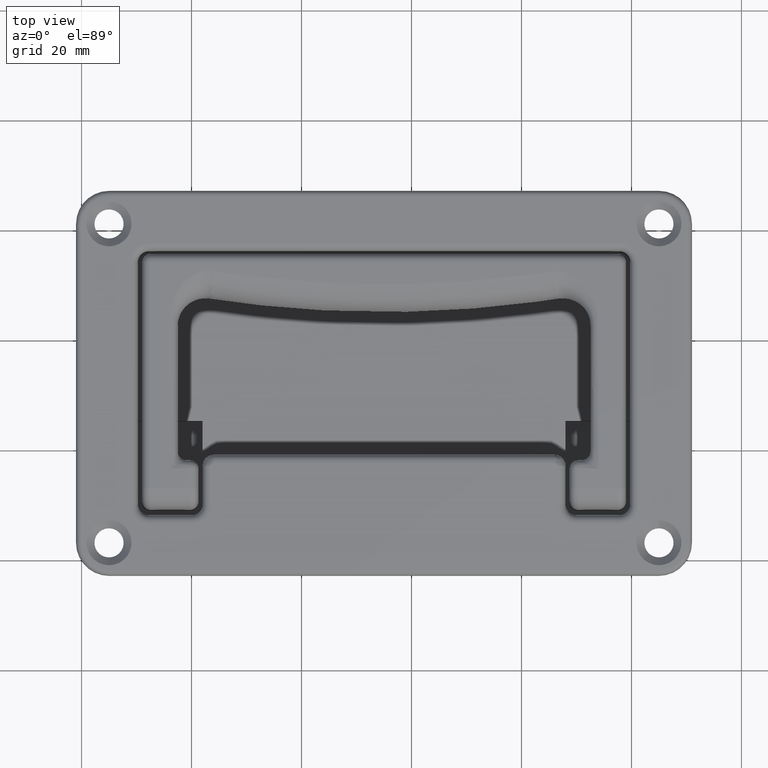
[diagram: clean part render]
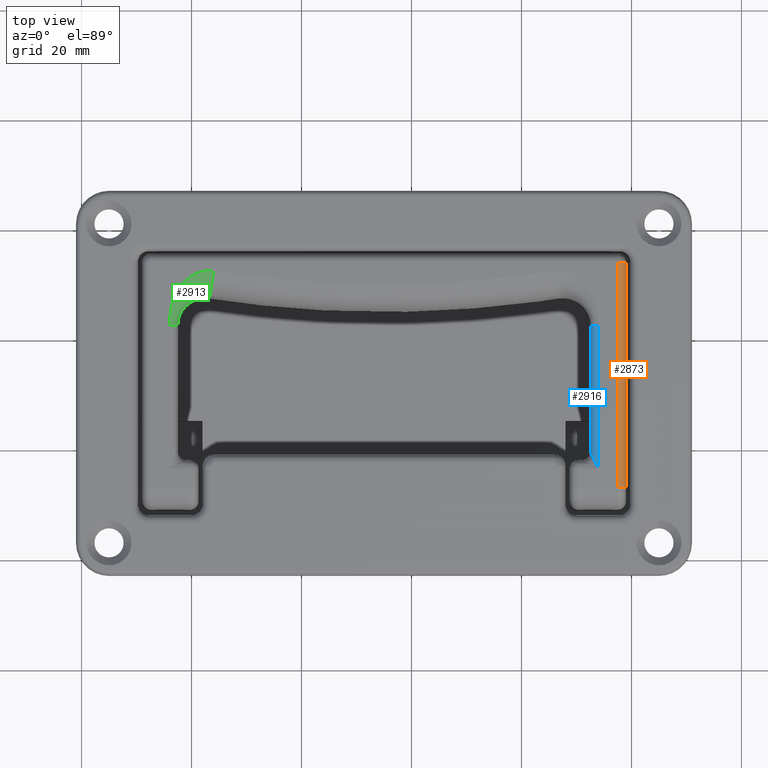
[diagram: same view with three faces highlighted in distinct colors, each labeled with its STEP entity id]
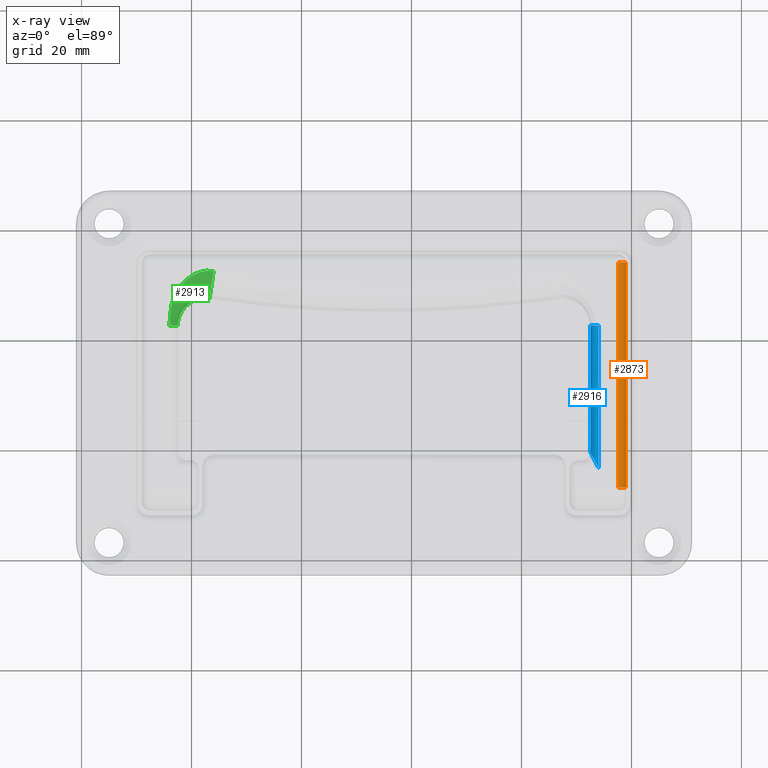
[diagram: x-ray of the same camera — body ghosted, the three highlighted faces saturated]
A machine part, top view with three faces highlighted in distinct colors.
The next image is the same camera in x-ray (body ghosted, the three faces saturated) — at least one of them is partly hidden behind the body in this view.
Their STEP definitions:

[orange] entity #2873 — the highlighted cylindrical surface (edge-blend (fillet) strip) has radius 1.5 mm, axis along (0, 1, 0).
#139=LINE('',#4371,#329);
#144=LINE('',#4490,#334);
#329=VECTOR('',#3451,41.0000039999964);
#334=VECTOR('',#3480,41.000003999736);
#609=FACE_OUTER_BOUND('',#808,.T.);
#808=EDGE_LOOP('',(#1942,#1943,#1944,#1945));
#1043=CIRCLE('',#3082,1.5);
#1044=CIRCLE('',#3084,1.5);
#1229=VERTEX_POINT('',#4367);
#1231=VERTEX_POINT('',#4370);
#1238=VERTEX_POINT('',#4485);
#1239=VERTEX_POINT('',#4489);
#1490=EDGE_CURVE('',#1231,#1229,#139,.T.);
#1502=EDGE_CURVE('',#1238,#1229,#1043,.T.);
#1503=EDGE_CURVE('',#1239,#1238,#144,.T.);
#1504=EDGE_CURVE('',#1239,#1231,#1044,.T.);
#1942=ORIENTED_EDGE('',*,*,#1502,.F.);
#1943=ORIENTED_EDGE('',*,*,#1503,.F.);
#1944=ORIENTED_EDGE('',*,*,#1504,.T.);
#1945=ORIENTED_EDGE('',*,*,#1490,.T.);
#2780=CYLINDRICAL_SURFACE('',#3083,1.5);
#2873=ADVANCED_FACE('',(#609),#2780,.T.);
#3082=AXIS2_PLACEMENT_3D('',#4487,#3476,#3477);
#3083=AXIS2_PLACEMENT_3D('',#4488,#3478,#3479);
#3084=AXIS2_PLACEMENT_3D('',#4491,#3481,#3482);
#3451=DIRECTION('',(0.,1.,0.));
#3476=DIRECTION('center_axis',(0.,1.,0.));
#3477=DIRECTION('ref_axis',(0.,0.,1.));
#3478=DIRECTION('center_axis',(0.,1.,0.));
#3479=DIRECTION('ref_axis',(0.,0.,1.));
#3480=DIRECTION('',(0.,1.,0.));
#3481=DIRECTION('center_axis',(0.,1.,0.));
#3482=DIRECTION('ref_axis',(0.,0.,1.));
#4367=CARTESIAN_POINT('',(98.9999999999998,-46.,-56.500000000007));
#4370=CARTESIAN_POINT('',(98.9999999999998,-87.0000039999964,-56.500000000007));
#4371=CARTESIAN_POINT('',(98.9999999999998,-87.0000039999964,-56.500000000007));
#4485=CARTESIAN_POINT('',(97.4999999999998,-46.,-55.000000000007));
#4487=CARTESIAN_POINT('Origin',(97.4999999999998,-46.,-56.500000000007));
#4488=CARTESIAN_POINT('Origin',(97.4999999999998,-87.2380097974848,-56.500000000007));
#4489=CARTESIAN_POINT('',(97.4999999999998,-87.000003999736,-55.0000000000071));
#4490=CARTESIAN_POINT('',(97.4999999999998,-87.0000039989547,-55.000000000007));
#4491=CARTESIAN_POINT('Origin',(97.4999999999998,-87.0000039999964,-56.500000000007));

[blue] entity #2916 — the highlighted face is a freeform B-spline surface patch.
#39=(
BOUNDED_SURFACE()
B_SPLINE_SURFACE(3,3,((#6874,#6875,#6876,#6877,#6878,#6879),(#6880,#6881,
#6882,#6883,#6884,#6885),(#6886,#6887,#6888,#6889,#6890,#6891),(#6892,#6893,
#6894,#6895,#6896,#6897)),.UNSPECIFIED.,.F.,.F.,.F.)
B_SPLINE_SURFACE_WITH_KNOTS((4,4),(4,1,1,4),(0.,1.),(0.,0.00980391974083174,
0.9673128059642,1.),.UNSPECIFIED.)
GEOMETRIC_REPRESENTATION_ITEM()
RATIONAL_B_SPLINE_SURFACE(((1.241927124552,1.241927124552,1.241927124552,
1.241927124552,1.241927124552,1.241927124552),(0.9193576251494,0.9193576251494,
0.9193576251494,0.9193576251494,0.9193576251494,0.9193576251494),(0.9193576251494,
0.9193576251494,0.9193576251494,0.9193576251494,0.9193576251494,0.9193576251494),
(1.241927124552,1.241927124552,1.241927124552,1.241927124552,1.241927124552,
1.241927124552)))
REPRESENTATION_ITEM('')
SURFACE()
);
#96=B_SPLINE_CURVE_WITH_KNOTS('',3,(#4900,#4901,#4902,#4903,#4904,#4905),
 .UNSPECIFIED.,.F.,.F.,(4,1,1,4),(0.,0.3333333333333,0.6666666666667,1.),
 .UNSPECIFIED.);
#115=B_SPLINE_CURVE_WITH_KNOTS('',3,(#6899,#6900,#6901,#6902,#6903,#6904,
#6905,#6906,#6907,#6908,#6909,#6910,#6911,#6912,#6913),.UNSPECIFIED.,.F.,
 .F.,(4,2,2,1,1,1,2,2,4),(0.,0.492187500000306,0.50000000000031,0.625000000000237,
0.687500000000202,0.718750000000184,0.74218750000017,0.750000000000165,
1.),.UNSPECIFIED.);
#116=B_SPLINE_CURVE_WITH_KNOTS('',3,(#6915,#6916,#6917,#6918,#6919,#6920,
#6921,#6922,#6923,#6924,#6925,#6926,#6927,#6928,#6929,#6930,#6931,#6932,
#6933,#6934,#6935,#6936,#6937,#6938,#6939,#6940,#6941,#6942,#6943,#6944,
#6945,#6946,#6947,#6948,#6949,#6950,#6951,#6952,#6953,#6954,#6955,#6956,
#6957,#6958,#6959,#6960,#6961,#6962,#6963,#6964,#6965,#6966,#6967,#6968,
#6969,#6970,#6971,#6972),.UNSPECIFIED.,.F.,.F.,(4,3,3,3,3,3,3,3,3,3,3,3,
3,3,3,3,3,3,3,4),(2.92958187910996E-10,0.0744206845704031,0.11800729906749,
0.1478843310011,0.22060891019219,0.273573027214368,0.292713554341639,0.364603056084736,
0.436629838324277,0.499999988838973,0.585488958630403,0.59774332857462,
0.668989071154953,0.751741625155561,0.758143828347574,0.828906599344565,
0.90388059740557,0.912162619505397,0.976025412416778,0.999999287157386),
 .UNSPECIFIED.);
#117=B_SPLINE_CURVE_WITH_KNOTS('',3,(#6973,#6974,#6975,#6976,#6977,#6978,
#6979,#6980,#6981,#6982,#6983,#6984,#6985,#6986,#6987,#6988,#6989,#6990,
#6991,#6992,#6993,#6994,#6995,#6996,#6997,#6998,#6999,#7000,#7001,#7002,
#7003,#7004,#7005,#7006),.UNSPECIFIED.,.F.,.F.,(4,2,2,2,2,2,2,2,2,2,2,2,
2,2,2,2,4),(9.28046460950633E-14,0.124999999999977,0.156249999999971,0.18534207474491,
0.216279008217408,0.249999999999955,0.32796215524864,0.3864845624504,0.443242281225185,
0.495033364537451,0.49999999999997,0.575769149464673,0.670741295325522,
0.770977123120116,0.874383624951822,0.982243991306103,1.),.UNSPECIFIED.);
#652=FACE_OUTER_BOUND('',#852,.T.);
#852=EDGE_LOOP('',(#2133,#2134,#2135,#2136,#2137));
#1076=CIRCLE('',#3150,1.50001888386);
#1273=VERTEX_POINT('',#4862);
#1274=VERTEX_POINT('',#4899);
#1298=VERTEX_POINT('',#6836);
#1299=VERTEX_POINT('',#6898);
#1300=VERTEX_POINT('',#6914);
#1550=EDGE_CURVE('',#1273,#1274,#96,.T.);
#1607=EDGE_CURVE('',#1273,#1298,#1076,.T.);
#1608=EDGE_CURVE('',#1298,#1299,#115,.T.);
#1609=EDGE_CURVE('',#1299,#1300,#116,.T.);
#1610=EDGE_CURVE('',#1300,#1274,#117,.T.);
#2133=ORIENTED_EDGE('',*,*,#1607,.T.);
#2134=ORIENTED_EDGE('',*,*,#1608,.T.);
#2135=ORIENTED_EDGE('',*,*,#1609,.T.);
#2136=ORIENTED_EDGE('',*,*,#1610,.T.);
#2137=ORIENTED_EDGE('',*,*,#1550,.F.);
#2916=ADVANCED_FACE('',(#652),#39,.T.);
#3150=AXIS2_PLACEMENT_3D('',#6873,#3654,#3655);
#3654=DIRECTION('center_axis',(-1.55143900961897E-7,-0.999999999999976,
1.55143898593497E-7));
#3655=DIRECTION('ref_axis',(2.77552264879769E-14,1.55143898593495E-7,0.999999999999988));
#4862=CARTESIAN_POINT('',(94.0000188838598,-57.5,-55.000000000007));
#4899=CARTESIAN_POINT('',(93.9998514593801,-83.4998477781844,-55.0000000016292));
#4900=CARTESIAN_POINT('Ctrl Pts',(94.0000188838598,-57.5,-55.000000000007));
#4901=CARTESIAN_POINT('Ctrl Pts',(94.0000184304598,-60.42244610498,-55.000000000007));
#4902=CARTESIAN_POINT('Ctrl Pts',(93.9999950055498,-66.24493808586,-55.000000000881));
#4903=CARTESIAN_POINT('Ctrl Pts',(94.0000751544499,-74.91094914543,-54.999999996951));
#4904=CARTESIAN_POINT('Ctrl Pts',(93.9998528994098,-80.644191026356,-55.000000006557));
#4905=CARTESIAN_POINT('Ctrl Pts',(93.9998514593798,-83.499847778184,-55.000000006557));
#6836=CARTESIAN_POINT('',(92.5000000000001,-57.5000003688146,-56.5000196748807));
#6873=CARTESIAN_POINT('Origin',(94.0000188838598,-57.50000023272,-56.500018883868));
#6874=CARTESIAN_POINT('Ctrl Pts',(94.1926853346498,-57.24000406077,-55.012424750471));
#6875=CARTESIAN_POINT('Ctrl Pts',(94.1926853222498,-57.32666938448,-55.01242475038));
#6876=CARTESIAN_POINT('Ctrl Pts',(94.1926839606398,-65.87758367656,-55.012424740385));
#6877=CARTESIAN_POINT('Ctrl Pts',(94.1926687416398,-74.71744805473,-55.012424628674));
#6878=CARTESIAN_POINT('Ctrl Pts',(94.1926636359799,-83.470647108262,-55.012424591197));
#6879=CARTESIAN_POINT('Ctrl Pts',(94.1926634778099,-83.759597470315,-55.012424590036));
#6880=CARTESIAN_POINT('Ctrl Pts',(93.1315250107299,-57.24000391275,-54.874988103745));
#6881=CARTESIAN_POINT('Ctrl Pts',(93.1315250060998,-57.32666922365,-54.874988104661));
#6882=CARTESIAN_POINT('Ctrl Pts',(93.1315244980999,-65.87758226828,-54.874988205221));
#6883=CARTESIAN_POINT('Ctrl Pts',(93.1315188200298,-74.71744702481,-54.874989329209));
#6884=CARTESIAN_POINT('Ctrl Pts',(93.1315169151599,-83.470646474965,-54.874989706283));
#6885=CARTESIAN_POINT('Ctrl Pts',(93.1315168561499,-83.759596850119,-54.874989717964));
#6886=CARTESIAN_POINT('Ctrl Pts',(92.3749296684599,-57.24000391276,-55.63163435728));
#6887=CARTESIAN_POINT('Ctrl Pts',(92.3749296693798,-57.32666922366,-55.631634352651));
#6888=CARTESIAN_POINT('Ctrl Pts',(92.3749297699898,-65.87758226834,-55.631633844558));
#6889=CARTESIAN_POINT('Ctrl Pts',(92.3749308944998,-74.71744702485,-55.631628165511));
#6890=CARTESIAN_POINT('Ctrl Pts',(92.3749312717499,-83.470646474992,-55.631626260307));
#6891=CARTESIAN_POINT('Ctrl Pts',(92.3749312834398,-83.759596850145,-55.631626201285));
#6892=CARTESIAN_POINT('Ctrl Pts',(92.5124377179099,-57.24000406079,-56.692785431005));
#6893=CARTESIAN_POINT('Ctrl Pts',(92.5124377178199,-57.3266693845,-56.6927854186));
#6894=CARTESIAN_POINT('Ctrl Pts',(92.5124377078098,-65.87758367669,-56.692784056907));
#6895=CARTESIAN_POINT('Ctrl Pts',(92.5124375959898,-74.71744805483,-56.69276883701));
#6896=CARTESIAN_POINT('Ctrl Pts',(92.5124375584698,-83.470647108322,-56.692763731048));
#6897=CARTESIAN_POINT('Ctrl Pts',(92.5124375573099,-83.759597470373,-56.69276357287));
#6898=CARTESIAN_POINT('',(92.499996384288,-80.5000728197097,-56.4988937141911));
#6899=CARTESIAN_POINT('Ctrl Pts',(92.5000000000008,-57.50000073763,-56.50001887602));
#6900=CARTESIAN_POINT('Ctrl Pts',(92.4999999999992,-61.2697661373591,-56.5000182934704));
#6901=CARTESIAN_POINT('Ctrl Pts',(92.4999999999992,-65.0395315370871,-56.5000154101254));
#6902=CARTESIAN_POINT('Ctrl Pts',(92.5000000000001,-68.8691344828427,-56.5000119258022));
#6903=CARTESIAN_POINT('Ctrl Pts',(92.5000000000001,-68.9774575786538,-56.5000118268904));
#6904=CARTESIAN_POINT('Ctrl Pts',(92.5000000000001,-69.1704415147971,-56.5000116504405));
#6905=CARTESIAN_POINT('Ctrl Pts',(92.4999999954936,-70.0257706689694,-56.4999286570662));
#6906=CARTESIAN_POINT('Ctrl Pts',(92.5000000305112,-72.0436968597363,-56.4996869301308));
#6907=CARTESIAN_POINT('Ctrl Pts',(92.5000000779235,-73.3979543309325,-56.4995186217018));
#6908=CARTESIAN_POINT('Ctrl Pts',(92.5000001106269,-74.1043192262764,-56.4994295178549));
#6909=CARTESIAN_POINT('Ctrl Pts',(92.500000132479,-74.526171348217,-56.4993760167834));
#6910=CARTESIAN_POINT('Ctrl Pts',(92.5000001401052,-74.6674271860582,-56.49935806483));
#6911=CARTESIAN_POINT('Ctrl Pts',(92.500000275772,-77.1168186201382,-56.4990463915813));
#6912=CARTESIAN_POINT('Ctrl Pts',(92.5000004090747,-79.0362925037572,-56.4988947627518));
#6913=CARTESIAN_POINT('Ctrl Pts',(92.5000004090766,-80.5000728196601,-56.4988937163061));
#6914=CARTESIAN_POINT('',(93.2499982844237,-81.9999940361212,-55.2009620282927));
#6915=CARTESIAN_POINT('Ctrl Pts',(92.4999948803529,-80.500072819264,-56.498893712596));
#6916=CARTESIAN_POINT('Ctrl Pts',(92.5000165326462,-80.5001388674843,-56.4623752862318));
#6917=CARTESIAN_POINT('Ctrl Pts',(92.5013773580433,-80.5032700109337,-56.4253128972558));
#6918=CARTESIAN_POINT('Ctrl Pts',(92.5041821204503,-80.5093686997579,-56.3879298000845));
#6919=CARTESIAN_POINT('Ctrl Pts',(92.5058248102345,-80.5129405722998,-56.3660353138818));
#6920=CARTESIAN_POINT('Ctrl Pts',(92.5079611246693,-80.5175362218874,-56.3440374361138));
#6921=CARTESIAN_POINT('Ctrl Pts',(92.5106010708129,-80.5231233314327,-56.3219721304412));
#6922=CARTESIAN_POINT('Ctrl Pts',(92.5124106574519,-80.5269530909179,-56.3068471694914));
#6923=CARTESIAN_POINT('Ctrl Pts',(92.5144567213745,-80.5312484808064,-56.2916900225087));
#6924=CARTESIAN_POINT('Ctrl Pts',(92.5167409323229,-80.536010767072,-56.2765251790266));
#6925=CARTESIAN_POINT('Ctrl Pts',(92.5223009986766,-80.547602790852,-56.2396119788404));
#6926=CARTESIAN_POINT('Ctrl Pts',(92.5292789926535,-80.5619366509488,-56.2026264809649));
#6927=CARTESIAN_POINT('Ctrl Pts',(92.5376890551317,-80.578921334474,-56.1658182371049));
#6928=CARTESIAN_POINT('Ctrl Pts',(92.5438139655569,-80.5912910006283,-56.1390113974247));
#6929=CARTESIAN_POINT('Ctrl Pts',(92.5506968611283,-80.6050641443574,-56.1123037139307));
#6930=CARTESIAN_POINT('Ctrl Pts',(92.5583227637956,-80.6202117353205,-56.0857817729335));
#6931=CARTESIAN_POINT('Ctrl Pts',(92.5610786635459,-80.6256858731339,-56.07619709637));
#6932=CARTESIAN_POINT('Ctrl Pts',(92.5639315191652,-80.6313396355452,-56.066636105986));
#6933=CARTESIAN_POINT('Ctrl Pts',(92.5668786573532,-80.6371697684125,-56.0571065517154));
#6934=CARTESIAN_POINT('Ctrl Pts',(92.5779477514534,-80.659067041363,-56.0213147000182));
#6935=CARTESIAN_POINT('Ctrl Pts',(92.590357041725,-80.6834663798699,-55.9859387556922));
#6936=CARTESIAN_POINT('Ctrl Pts',(92.6040059358391,-80.7102798512714,-55.951210095045));
#6937=CARTESIAN_POINT('Ctrl Pts',(92.6176808939392,-80.7371445257913,-55.9164151164007));
#6938=CARTESIAN_POINT('Ctrl Pts',(92.6326012950095,-80.7664325692542,-55.8822707809349));
#6939=CARTESIAN_POINT('Ctrl Pts',(92.6486326179661,-80.7980555425198,-55.8489970529925));
#6940=CARTESIAN_POINT('Ctrl Pts',(92.6627371956957,-80.8258778679557,-55.8197223709599));
#6941=CARTESIAN_POINT('Ctrl Pts',(92.6776986745981,-80.8555075910876,-55.791121129652));
#6942=CARTESIAN_POINT('Ctrl Pts',(92.693379628748,-80.8868844798605,-55.7633136614859));
#6943=CARTESIAN_POINT('Ctrl Pts',(92.7145338883597,-80.9292132083654,-55.7258002298983));
#6944=CARTESIAN_POINT('Ctrl Pts',(92.7373283689672,-80.9747514356404,-55.6891222239362));
#6945=CARTESIAN_POINT('Ctrl Pts',(92.7618275613791,-81.0237042955,-55.6532871076929));
#6946=CARTESIAN_POINT('Ctrl Pts',(92.7653393848094,-81.0307214166095,-55.6481503424177));
#6947=CARTESIAN_POINT('Ctrl Pts',(92.7688865379773,-81.0378083131341,-55.6430307760831));
#6948=CARTESIAN_POINT('Ctrl Pts',(92.7724691200191,-81.0449661257789,-55.6379288922459));
#6949=CARTESIAN_POINT('Ctrl Pts',(92.7932979116322,-81.086580968439,-55.6082670243413));
#6950=CARTESIAN_POINT('Ctrl Pts',(92.8153234146038,-81.1305912266506,-55.5791988616621));
#6951=CARTESIAN_POINT('Ctrl Pts',(92.8385893460413,-81.1771102363588,-55.5507372866774));
#6952=CARTESIAN_POINT('Ctrl Pts',(92.8656129291766,-81.2311424735635,-55.517678918057));
#6953=CARTESIAN_POINT('Ctrl Pts',(92.8943079859794,-81.2885619836278,-55.4854364559256));
#6954=CARTESIAN_POINT('Ctrl Pts',(92.9247856111859,-81.3495548237913,-55.4540983900555));
#6955=CARTESIAN_POINT('Ctrl Pts',(92.9271435317569,-81.3542735730879,-55.4516739009534));
#6956=CARTESIAN_POINT('Ctrl Pts',(92.9295122004396,-81.3590136677385,-55.4492548142676));
#6957=CARTESIAN_POINT('Ctrl Pts',(92.9318916084214,-81.3637752292613,-55.4468412691543));
#6958=CARTESIAN_POINT('Ctrl Pts',(92.9581909146256,-81.4164041879987,-55.4201646493996));
#6959=CARTESIAN_POINT('Ctrl Pts',(92.9858028419779,-81.4716577505111,-55.3941610434979));
#6960=CARTESIAN_POINT('Ctrl Pts',(93.0147908143646,-81.5296504161642,-55.3689133179537));
#6961=CARTESIAN_POINT('Ctrl Pts',(93.0455039161113,-81.5910943356287,-55.3421630522514));
#6962=CARTESIAN_POINT('Ctrl Pts',(93.0777617963284,-81.655613800015,-55.3162604384061));
#6963=CARTESIAN_POINT('Ctrl Pts',(93.1116372260642,-81.7233471777895,-55.2913602875644));
#6964=CARTESIAN_POINT('Ctrl Pts',(93.1153792841773,-81.7308293628954,-55.2886096859573));
#6965=CARTESIAN_POINT('Ctrl Pts',(93.1191411871194,-81.7383507126017,-55.2858712961306));
#6966=CARTESIAN_POINT('Ctrl Pts',(93.1229228885142,-81.7459114303129,-55.2831454749085));
#6967=CARTESIAN_POINT('Ctrl Pts',(93.1520836429916,-81.8042122345894,-55.2621266278059));
#6968=CARTESIAN_POINT('Ctrl Pts',(93.1824222177691,-81.8648575526239,-55.241853096135));
#6969=CARTESIAN_POINT('Ctrl Pts',(93.2139661576362,-81.9279305333365,-55.2224457103737));
#6970=CARTESIAN_POINT('Ctrl Pts',(93.225807645124,-81.9516079152702,-55.2151602439217));
#6971=CARTESIAN_POINT('Ctrl Pts',(93.2378186721683,-81.975627459714,-55.207997244697));
#6972=CARTESIAN_POINT('Ctrl Pts',(93.2499999701075,-81.9999938264752,-55.2009642215891));
#6973=CARTESIAN_POINT('Ctrl Pts',(93.2500001518106,-81.9999959999958,-55.2009620268594));
#6974=CARTESIAN_POINT('Ctrl Pts',(93.2766025006171,-82.0531903631533,-55.1856031368011));
#6975=CARTESIAN_POINT('Ctrl Pts',(93.3050192152377,-82.1100144808458,-55.1702860543035));
#6976=CARTESIAN_POINT('Ctrl Pts',(93.3428192809834,-82.1855818213043,-55.15159938755));
#6977=CARTESIAN_POINT('Ctrl Pts',(93.3515444226551,-82.2030631823081,-55.1473705569489));
#6978=CARTESIAN_POINT('Ctrl Pts',(93.3691377226168,-82.2382903622708,-55.139081069751));
#6979=CARTESIAN_POINT('Ctrl Pts',(93.3779541651341,-82.2559345613179,-55.1350291073041));
#6980=CARTESIAN_POINT('Ctrl Pts',(93.3955081853119,-82.2910314539601,-55.1271607506901));
#6981=CARTESIAN_POINT('Ctrl Pts',(93.4042049519598,-82.3084010490253,-55.12337533197));
#6982=CARTESIAN_POINT('Ctrl Pts',(93.4200042680176,-82.3399461982825,-55.1166399992606));
#6983=CARTESIAN_POINT('Ctrl Pts',(93.4268920889688,-82.3536936493568,-55.1137926571291));
#6984=CARTESIAN_POINT('Ctrl Pts',(93.4418304958412,-82.3835861789825,-55.1076733379873));
#6985=CARTESIAN_POINT('Ctrl Pts',(93.4564852660826,-82.4130035857335,-55.1018044416296));
#6986=CARTESIAN_POINT('Ctrl Pts',(93.4875651502954,-82.4753059022242,-55.0901727773965));
#6987=CARTESIAN_POINT('Ctrl Pts',(93.5026376051884,-82.5054971772409,-55.0847517990862));
#6988=CARTESIAN_POINT('Ctrl Pts',(93.5347924179132,-82.5698357231185,-55.0738649698289));
#6989=CARTESIAN_POINT('Ctrl Pts',(93.5518002418809,-82.603836252679,-55.0684068710641));
#6990=CARTESIAN_POINT('Ctrl Pts',(93.5856822665615,-82.6715499695335,-55.0582560837264));
#6991=CARTESIAN_POINT('Ctrl Pts',(93.6024373981262,-82.7050279492896,-55.0535380833958));
#6992=CARTESIAN_POINT('Ctrl Pts',(93.6210461031676,-82.7422342639536,-55.048656924495));
#6993=CARTESIAN_POINT('Ctrl Pts',(93.6226765424329,-82.7454943819776,-55.0482321821965));
#6994=CARTESIAN_POINT('Ctrl Pts',(93.6492087244582,-82.7985502946438,-55.0413681216613));
#6995=CARTESIAN_POINT('Ctrl Pts',(93.6732543354222,-82.8465462582709,-55.0358291923009));
#6996=CARTESIAN_POINT('Ctrl Pts',(93.7254253858552,-82.9506549162388,-55.025046817703));
#6997=CARTESIAN_POINT('Ctrl Pts',(93.7530396060649,-83.0057418325488,-55.0202328499794));
#6998=CARTESIAN_POINT('Ctrl Pts',(93.8068373303037,-83.1131686153148,-55.0122270934197));
#6999=CARTESIAN_POINT('Ctrl Pts',(93.8328573820716,-83.165187017261,-55.0091395331293));
#7000=CARTESIAN_POINT('Ctrl Pts',(93.882459694364,-83.2644831573302,-55.0043982751224));
#7001=CARTESIAN_POINT('Ctrl Pts',(93.9059396531861,-83.3115588888767,-55.0027928948484));
#7002=CARTESIAN_POINT('Ctrl Pts',(93.9504822284782,-83.400903181482,-55.0006446836357));
#7003=CARTESIAN_POINT('Ctrl Pts',(93.9713979625003,-83.4428773584996,-55.0001505351995));
#7004=CARTESIAN_POINT('Ctrl Pts',(93.9936925115846,-83.4875224299424,-55.0000099497017));
#7005=CARTESIAN_POINT('Ctrl Pts',(93.9967958602522,-83.4937344221903,-55.0000003092661));
#7006=CARTESIAN_POINT('Ctrl Pts',(93.9998514593799,-83.499847778184,-55.0000000073305));

[green] entity #2913 — the highlighted face is a freeform B-spline surface patch.
#36=(
BOUNDED_SURFACE()
B_SPLINE_SURFACE(3,3,((#6025,#6026,#6027,#6028,#6029,#6030,#6031,#6032,
#6033,#6034,#6035,#6036,#6037,#6038,#6039,#6040,#6041,#6042,#6043,#6044,
#6045,#6046,#6047,#6048,#6049,#6050,#6051,#6052,#6053,#6054,#6055,#6056,
#6057,#6058,#6059,#6060,#6061,#6062,#6063,#6064),(#6065,#6066,#6067,#6068,
#6069,#6070,#6071,#6072,#6073,#6074,#6075,#6076,#6077,#6078,#6079,#6080,
#6081,#6082,#6083,#6084,#6085,#6086,#6087,#6088,#6089,#6090,#6091,#6092,
#6093,#6094,#6095,#6096,#6097,#6098,#6099,#6100,#6101,#6102,#6103,#6104),
(#6105,#6106,#6107,#6108,#6109,#6110,#6111,#6112,#6113,#6114,#6115,#6116,
#6117,#6118,#6119,#6120,#6121,#6122,#6123,#6124,#6125,#6126,#6127,#6128,
#6129,#6130,#6131,#6132,#6133,#6134,#6135,#6136,#6137,#6138,#6139,#6140,
#6141,#6142,#6143,#6144),(#6145,#6146,#6147,#6148,#6149,#6150,#6151,#6152,
#6153,#6154,#6155,#6156,#6157,#6158,#6159,#6160,#6161,#6162,#6163,#6164,
#6165,#6166,#6167,#6168,#6169,#6170,#6171,#6172,#6173,#6174,#6175,#6176,
#6177,#6178,#6179,#6180,#6181,#6182,#6183,#6184)),.UNSPECIFIED.,.F.,.F.,
 .F.)
B_SPLINE_SURFACE_WITH_KNOTS((4,4),(4,1,1,1,1,1,1,1,1,1,1,1,1,1,1,1,1,1,
1,1,1,1,1,1,1,1,1,1,1,1,1,1,1,1,1,1,1,4),(0.,1.),(0.,0.00851959815986437,
0.0309381727870487,0.053748835911989,0.0769408486762081,0.100554788263249,
0.124605869536482,0.149106636927281,0.174079418419341,0.199553517956562,
0.225541336048884,0.252063472126606,0.279149285115475,0.30680783366274,
0.335062674405695,0.363952319821681,0.39348952744706,0.423712002028075,
0.454677649746942,0.486414952310406,0.519010714651965,0.55257829171694,
0.587200386980726,0.623096767676965,0.659633132600731,0.694706404699787,
0.727681381111098,0.758870853718027,0.788482843735987,0.816738161257242,
0.84381158667038,0.869857186782469,0.895030245249235,0.919469781732942,
0.943285178453216,0.966569319696432,0.989387282735296,1.),.UNSPECIFIED.)
GEOMETRIC_REPRESENTATION_ITEM()
RATIONAL_B_SPLINE_SURFACE(((1.283703333365,1.283703333365,1.283703333365,
1.283703333365,1.283703333365,1.283703333365,1.283703333365,1.283703333365,
1.283703333365,1.283703333365,1.283703333365,1.283703333365,1.283703333365,
1.283703333365,1.283703333365,1.283703333365,1.283703333365,1.283703333365,
1.283703333365,1.283703333365,1.283703333365,1.283703333365,1.283703333365,
1.283703333365,1.283703333365,1.283703333365,1.283703333365,1.283703333365,
1.283703333365,1.283703333365,1.283703333365,1.283703333365,1.283703333365,
1.283703333365,1.283703333365,1.283703333365,1.283703333365,1.283703333365,
1.283703333365,1.283703333365),(0.9054322222116,0.9054322222116,0.9054322222116,
0.9054322222116,0.9054322222116,0.9054322222116,0.9054322222116,0.9054322222116,
0.9054322222116,0.9054322222116,0.9054322222116,0.9054322222116,0.9054322222116,
0.9054322222116,0.9054322222116,0.9054322222116,0.9054322222116,0.9054322222116,
0.9054322222116,0.9054322222116,0.9054322222116,0.9054322222116,0.9054322222116,
0.9054322222116,0.9054322222116,0.9054322222116,0.9054322222116,0.9054322222116,
0.9054322222116,0.9054322222116,0.9054322222116,0.9054322222116,0.9054322222116,
0.9054322222116,0.9054322222116,0.9054322222116,0.9054322222116,0.9054322222116,
0.9054322222116,0.9054322222116),(0.9054322222116,0.9054322222116,0.9054322222116,
0.9054322222116,0.9054322222116,0.9054322222116,0.9054322222116,0.9054322222116,
0.9054322222116,0.9054322222116,0.9054322222116,0.9054322222116,0.9054322222116,
0.9054322222116,0.9054322222116,0.9054322222116,0.9054322222116,0.9054322222116,
0.9054322222116,0.9054322222116,0.9054322222116,0.9054322222116,0.9054322222116,
0.9054322222116,0.9054322222116,0.9054322222116,0.9054322222116,0.9054322222116,
0.9054322222116,0.9054322222116,0.9054322222116,0.9054322222116,0.9054322222116,
0.9054322222116,0.9054322222116,0.9054322222116,0.9054322222116,0.9054322222116,
0.9054322222116,0.9054322222116),(1.283703333365,1.283703333365,1.283703333365,
1.283703333365,1.283703333365,1.283703333365,1.283703333365,1.283703333365,
1.283703333365,1.283703333365,1.283703333365,1.283703333365,1.283703333365,
1.283703333365,1.283703333365,1.283703333365,1.283703333365,1.283703333365,
1.283703333365,1.283703333365,1.283703333365,1.283703333365,1.283703333365,
1.283703333365,1.283703333365,1.283703333365,1.283703333365,1.283703333365,
1.283703333365,1.283703333365,1.283703333365,1.283703333365,1.283703333365,
1.283703333365,1.283703333365,1.283703333365,1.283703333365,1.283703333365,
1.283703333365,1.283703333365)))
REPRESENTATION_ITEM('')
SURFACE()
);
#93=B_SPLINE_CURVE_WITH_KNOTS('',3,(#4768,#4769,#4770,#4771,#4772,#4773,
#4774,#4775,#4776,#4777,#4778,#4779,#4780,#4781,#4782,#4783,#4784,#4785,
#4786,#4787,#4788,#4789,#4790,#4791,#4792,#4793,#4794,#4795,#4796,#4797,
#4798,#4799,#4800,#4801,#4802,#4803,#4804,#4805),.UNSPECIFIED.,.F.,.F.,
(4,1,1,1,1,1,1,1,1,1,1,1,1,1,1,1,1,1,1,1,1,1,1,1,1,1,1,1,1,1,1,1,1,1,1,
4),(4.79999631501371E-8,0.02857142857143,0.05714285714286,0.08571428571429,
0.1142857142857,0.1428571428571,0.1714285714286,0.2,0.2285714285714,0.2571428571429,
0.2857142857143,0.3142857142857,0.3428571428571,0.3714285714286,0.4,0.4285714285714,
0.4571428571429,0.4857142857143,0.5142857142857,0.5428571428571,0.5714285714286,
0.6,0.6285714285714,0.6571428571429,0.6857142857143,0.7142857142857,0.7428571428571,
0.7714285714286,0.8,0.8285714285714,0.8571428571429,0.8857142857143,0.9142857142857,
0.9428571428571,0.9714285714286,0.99997170533529),.UNSPECIFIED.);
#111=B_SPLINE_CURVE_WITH_KNOTS('',3,(#5814,#5815,#5816,#5817,#5818,#5819,
#5820,#5821,#5822,#5823,#5824,#5825,#5826,#5827,#5828,#5829,#5830,#5831,
#5832,#5833,#5834,#5835,#5836,#5837,#5838,#5839,#5840,#5841,#5842,#5843,
#5844,#5845,#5846,#5847,#5848,#5849,#5850,#5851,#5852,#5853,#5854,#5855,
#5856,#5857,#5858,#5859,#5860,#5861,#5862,#5863,#5864,#5865,#5866,#5867,
#5868,#5869,#5870,#5871,#5872,#5873,#5874,#5875,#5876,#5877,#5878,#5879,
#5880,#5881,#5882,#5883,#5884,#5885,#5886,#5887,#5888,#5889,#5890,#5891,
#5892,#5893,#5894,#5895,#5896,#5897,#5898,#5899,#5900,#5901,#5902,#5903,
#5904,#5905,#5906,#5907,#5908,#5909,#5910,#5911,#5912,#5913,#5914,#5915,
#5916,#5917,#5918,#5919,#5920,#5921,#5922,#5923,#5924,#5925,#5926,#5927,
#5928,#5929,#5930,#5931,#5932,#5933,#5934,#5935,#5936,#5937,#5938,#5939,
#5940,#5941,#5942,#5943,#5944,#5945,#5946,#5947,#5948,#5949,#5950,#5951,
#5952,#5953,#5954,#5955,#5956,#5957,#5958,#5959,#5960,#5961,#5962,#5963,
#5964,#5965,#5966,#5967,#5968,#5969,#5970,#5971,#5972,#5973,#5974,#5975,
#5976,#5977,#5978,#5979,#5980,#5981,#5982,#5983,#5984,#5985,#5986,#5987,
#5988,#5989,#5990,#5991,#5992,#5993,#5994,#5995,#5996,#5997,#5998,#5999,
#6000,#6001,#6002,#6003,#6004,#6005,#6006,#6007,#6008,#6009,#6010,#6011,
#6012,#6013,#6014,#6015,#6016,#6017,#6018,#6019,#6020,#6021,#6022,#6023,
#6024),.UNSPECIFIED.,.F.,.F.,(4,3,3,3,3,3,3,3,3,3,3,3,3,3,3,3,3,3,3,3,3,
3,3,3,3,3,3,3,3,3,3,3,3,3,3,3,3,3,3,3,3,3,3,3,3,3,3,3,3,3,3,3,3,3,3,3,3,
3,3,3,3,3,3,3,3,3,3,3,3,3,4),(9.71870115681046E-6,0.0284355475752278,0.0565929629491772,
0.0846028627046945,0.112632815816931,0.140809994080006,0.169255388027557,
0.198103298679206,0.227503195020272,0.250000702119836,0.257483086271673,
0.275682136266112,0.286152574663836,0.304265892275952,0.313917438796087,
0.332332217457337,0.341888028399513,0.360942881595454,0.371176201575688,
0.37500058509734,0.401053321660439,0.406250555841716,0.413492468594911,
0.420622471580595,0.427715101869325,0.435920106292805,0.437500526586092,
0.455240049495622,0.460479770537059,0.468750497330467,0.475877210310902,
0.482758757167435,0.48914516722362,0.495138549390289,0.500000468074843,
0.50994330283003,0.522075611283203,0.53125043881922,0.535149795727449,0.546875424191408,
0.55105707076206,0.554687916877502,0.558594163220548,0.562031835308815,
0.570182949368443,0.589567276952117,0.593750380307971,0.597321974123666,
0.60426164437848,0.611176430538462,0.618088390795404,0.624289449188528,
0.628346506166675,0.650102463257795,0.656162582099823,0.678099482772481,
0.684674304921055,0.706975916106262,0.713393778792552,0.73632278671168,
0.742596221738351,0.750000234029851,0.772169666810545,0.801422880236348,
0.830370922014823,0.859057374349898,0.887538350065311,0.915861683924664,
0.9440479961862,0.972102624730742,0.999999979356287),.UNSPECIFIED.);
#112=B_SPLINE_CURVE_WITH_KNOTS('',3,(#6185,#6186,#6187,#6188,#6189,#6190,
#6191,#6192,#6193,#6194,#6195,#6196,#6197,#6198,#6199,#6200,#6201,#6202,
#6203,#6204,#6205,#6206,#6207,#6208,#6209,#6210,#6211,#6212,#6213,#6214,
#6215,#6216,#6217,#6218,#6219,#6220,#6221,#6222,#6223,#6224,#6225,#6226,
#6227,#6228,#6229,#6230,#6231,#6232,#6233,#6234),.UNSPECIFIED.,.F.,.F.,
(4,2,2,2,2,2,2,2,2,2,2,2,2,2,2,2,2,2,2,2,2,2,2,2,4),(0.,0.0452750668471288,
0.0898338963502772,0.13374371765165,0.177069405610516,0.221123353366399,
0.26327097904619,0.30505733008236,0.346536323288448,0.387761067408007,0.428784064068944,
0.469657398323505,0.510432917995307,0.551162400854743,0.59250867196098,
0.633370461100893,0.674351930225354,0.715500234889848,0.757108318593547,
0.798877860228519,0.841149953553067,0.881932569704645,0.924974291673601,
0.968697033747301,1.),.UNSPECIFIED.);
#649=FACE_OUTER_BOUND('',#849,.T.);
#849=EDGE_LOOP('',(#2121,#2122,#2123,#2124));
#1070=CIRCLE('',#3136,1.50001888386519);
#1270=VERTEX_POINT('',#4765);
#1271=VERTEX_POINT('',#4767);
#1288=VERTEX_POINT('',#5290);
#1296=VERTEX_POINT('',#5775);
#1547=EDGE_CURVE('',#1271,#1270,#93,.T.);
#1581=EDGE_CURVE('',#1270,#1288,#1070,.T.);
#1602=EDGE_CURVE('',#1296,#1288,#111,.T.);
#1603=EDGE_CURVE('',#1296,#1271,#112,.T.);
#2121=ORIENTED_EDGE('',*,*,#1581,.T.);
#2122=ORIENTED_EDGE('',*,*,#1602,.F.);
#2123=ORIENTED_EDGE('',*,*,#1603,.T.);
#2124=ORIENTED_EDGE('',*,*,#1547,.T.);
#2913=ADVANCED_FACE('',(#649),#36,.T.);
#3136=AXIS2_PLACEMENT_3D('',#5357,#3620,#3621);
#3620=DIRECTION('center_axis',(-1.74720363773123E-7,0.999999999999971,-1.63890841698282E-7));
#3621=DIRECTION('ref_axis',(0.999999998084597,1.74730507177634E-7,6.18932642063294E-5));
#4765=CARTESIAN_POINT('',(16.0000458189998,-57.50065756237,-55.000000000007));
#4767=CARTESIAN_POINT('',(24.0293794437392,-47.6178597288155,-55.0000000002253));
#4768=CARTESIAN_POINT('Ctrl Pts',(24.0293794439155,-47.617859728842,-55.000000000007));
#4769=CARTESIAN_POINT('Ctrl Pts',(23.9147417826206,-47.6001180920184,-55.000000000007));
#4770=CARTESIAN_POINT('Ctrl Pts',(23.6830457892016,-47.5715100028456,-55.000000000007));
#4771=CARTESIAN_POINT('Ctrl Pts',(23.3268882648199,-47.55121630248,-55.000000000007));
#4772=CARTESIAN_POINT('Ctrl Pts',(22.9651823143697,-47.55363875428,-55.000000000007));
#4773=CARTESIAN_POINT('Ctrl Pts',(22.5983622487798,-47.5795078118099,-55.000000000007));
#4774=CARTESIAN_POINT('Ctrl Pts',(22.2282131164098,-47.62930570013,-55.000000000007));
#4775=CARTESIAN_POINT('Ctrl Pts',(21.8562946817698,-47.70343029288,-55.000000000007));
#4776=CARTESIAN_POINT('Ctrl Pts',(21.4840843692599,-47.80220772807,-55.000000000007));
#4777=CARTESIAN_POINT('Ctrl Pts',(21.1128171231398,-47.92596457698,-55.000000000007));
#4778=CARTESIAN_POINT('Ctrl Pts',(20.7442300701898,-48.07480222628,-55.000000000007));
#4779=CARTESIAN_POINT('Ctrl Pts',(20.3798263015098,-48.24880262493,-55.000000000007));
#4780=CARTESIAN_POINT('Ctrl Pts',(20.0208483527497,-48.44812075526,-55.000000000007));
#4781=CARTESIAN_POINT('Ctrl Pts',(19.6690904524198,-48.6725455206,-55.000000000007));
#4782=CARTESIAN_POINT('Ctrl Pts',(19.3260072511998,-48.92195819632,-55.000000000007));
#4783=CARTESIAN_POINT('Ctrl Pts',(18.9926963641298,-49.1964732263399,-55.000000000007));
#4784=CARTESIAN_POINT('Ctrl Pts',(18.6709209971898,-49.4956263915901,-55.000000000007));
#4785=CARTESIAN_POINT('Ctrl Pts',(18.3619563266798,-49.8192865764899,-55.000000000007));
#4786=CARTESIAN_POINT('Ctrl Pts',(18.0667256221499,-50.1677394056301,-55.000000000007));
#4787=CARTESIAN_POINT('Ctrl Pts',(17.7869293052298,-50.54038922835,-55.000000000007));
#4788=CARTESIAN_POINT('Ctrl Pts',(17.5234450827798,-50.93765854197,-55.000000000007));
#4789=CARTESIAN_POINT('Ctrl Pts',(17.2768801346399,-51.36077118628,-55.000000000007));
#4790=CARTESIAN_POINT('Ctrl Pts',(17.0491412101097,-51.80882946702,-55.000000000007));
#4791=CARTESIAN_POINT('Ctrl Pts',(16.8395216485798,-52.2865117548201,-55.000000000007));
#4792=CARTESIAN_POINT('Ctrl Pts',(16.6523811717799,-52.78926024209,-55.000000000007));
#4793=CARTESIAN_POINT('Ctrl Pts',(16.5008696440498,-53.27437290896,-55.000000000007));
#4794=CARTESIAN_POINT('Ctrl Pts',(16.3801895089098,-53.7343598297799,-55.000000000007));
#4795=CARTESIAN_POINT('Ctrl Pts',(16.2836140185298,-54.1746608333501,-55.000000000007));
#4796=CARTESIAN_POINT('Ctrl Pts',(16.2070677199298,-54.5955760105999,-55.000000000007));
#4797=CARTESIAN_POINT('Ctrl Pts',(16.1467985534499,-54.9998723476901,-55.000000000007));
#4798=CARTESIAN_POINT('Ctrl Pts',(16.1000432004198,-55.38911708434,-55.000000000007));
#4799=CARTESIAN_POINT('Ctrl Pts',(16.0644777087299,-55.7649611268401,-55.000000000007));
#4800=CARTESIAN_POINT('Ctrl Pts',(16.0381945980398,-56.12929787951,-55.000000000007));
#4801=CARTESIAN_POINT('Ctrl Pts',(16.0196759080098,-56.4838985380201,-55.000000000007));
#4802=CARTESIAN_POINT('Ctrl Pts',(16.0077131640898,-56.82994889614,-55.000000000007));
#4803=CARTESIAN_POINT('Ctrl Pts',(16.0012053834664,-57.1687998434377,-55.000000000007));
#4804=CARTESIAN_POINT('Ctrl Pts',(16.0000470210495,-57.3897848564017,-55.000000000007));
#4805=CARTESIAN_POINT('Ctrl Pts',(16.0000458208662,-57.5003288170434,-55.000000000007));
#5290=CARTESIAN_POINT('',(17.4999999964654,-57.5000004302423,-56.4999260428091));
#5357=CARTESIAN_POINT('Origin',(15.9999811161372,-57.5000003162082,-56.5000188838723));
#5775=CARTESIAN_POINT('',(23.2647585947958,-52.5588316864262,-59.9999158838627));
#5814=CARTESIAN_POINT('Ctrl Pts',(23.2647234565813,-52.5588262492649,-59.9999158819362));
#5815=CARTESIAN_POINT('Ctrl Pts',(23.2078558071974,-52.5500250964218,-59.9999159199194));
#5816=CARTESIAN_POINT('Ctrl Pts',(23.1499355248678,-52.5420676858007,-59.9982140934408));
#5817=CARTESIAN_POINT('Ctrl Pts',(23.0911139776781,-52.5350645255559,-59.994739495531));
#5818=CARTESIAN_POINT('Ctrl Pts',(23.0328478583506,-52.528127493295,-59.9912977068311));
#5819=CARTESIAN_POINT('Ctrl Pts',(22.9737034341969,-52.5221276801971,-59.9861165943328));
#5820=CARTESIAN_POINT('Ctrl Pts',(22.9138447669738,-52.5171561825752,-59.9791727489494));
#5821=CARTESIAN_POINT('Ctrl Pts',(22.8542996970109,-52.5122107304386,-59.9722652821055));
#5822=CARTESIAN_POINT('Ctrl Pts',(22.7940479472225,-52.5082829472605,-59.9636136095474));
#5823=CARTESIAN_POINT('Ctrl Pts',(22.7332592149626,-52.5054439497954,-59.9532351383371));
#5824=CARTESIAN_POINT('Ctrl Pts',(22.6724269617283,-52.5026029197837,-59.9428492367829));
#5825=CARTESIAN_POINT('Ctrl Pts',(22.6110571309653,-52.5008522309117,-59.9307342153815));
#5826=CARTESIAN_POINT('Ctrl Pts',(22.5493179000129,-52.5002432314423,-59.9169434732178));
#5827=CARTESIAN_POINT('Ctrl Pts',(22.4872543885471,-52.4996310332506,-59.9030802962525));
#5828=CARTESIAN_POINT('Ctrl Pts',(22.4248177269122,-52.5001725555393,-59.8875239375092));
#5829=CARTESIAN_POINT('Ctrl Pts',(22.3621769660595,-52.5018998798228,-59.8703601686639));
#5830=CARTESIAN_POINT('Ctrl Pts',(22.2989399341967,-52.5036436463299,-59.8530330196545));
#5831=CARTESIAN_POINT('Ctrl Pts',(22.235495028059,-52.506595891031,-59.8340679292047));
#5832=CARTESIAN_POINT('Ctrl Pts',(22.1720122807233,-52.5107691919491,-59.8135794522487));
#5833=CARTESIAN_POINT('Ctrl Pts',(22.1076312204209,-52.515001547185,-59.7928010529864));
#5834=CARTESIAN_POINT('Ctrl Pts',(22.0432113588352,-52.520489740838,-59.7704560666314));
#5835=CARTESIAN_POINT('Ctrl Pts',(21.9789236912353,-52.5272261784348,-59.7466934328361));
#5836=CARTESIAN_POINT('Ctrl Pts',(21.9134059216377,-52.5340915133093,-59.7224761167605));
#5837=CARTESIAN_POINT('Ctrl Pts',(21.848025559727,-52.5422533074013,-59.6967866383818));
#5838=CARTESIAN_POINT('Ctrl Pts',(21.7829561133658,-52.5516822995445,-59.6698045965685));
#5839=CARTESIAN_POINT('Ctrl Pts',(21.7331634095246,-52.558897590892,-59.6491572898497));
#5840=CARTESIAN_POINT('Ctrl Pts',(21.6835527216916,-52.5668544560142,-59.6277536569975));
#5841=CARTESIAN_POINT('Ctrl Pts',(21.6341986753407,-52.5755316971049,-59.6056793213934));
#5842=CARTESIAN_POINT('Ctrl Pts',(21.6177841484951,-52.5784176369084,-59.5983376786881));
#5843=CARTESIAN_POINT('Ctrl Pts',(21.6011379050634,-52.5814289922704,-59.5908055270379));
#5844=CARTESIAN_POINT('Ctrl Pts',(21.584286537899,-52.584568294104,-59.5830891233448));
#5845=CARTESIAN_POINT('Ctrl Pts',(21.5432997525005,-52.5922038698588,-59.5643208786598));
#5846=CARTESIAN_POINT('Ctrl Pts',(21.5010997464223,-52.6005985816932,-59.5444598686727));
#5847=CARTESIAN_POINT('Ctrl Pts',(21.4580659863651,-52.6097675401643,-59.5236236573699));
#5848=CARTESIAN_POINT('Ctrl Pts',(21.4333074229325,-52.6150427064434,-59.5116359840048));
#5849=CARTESIAN_POINT('Ctrl Pts',(21.4082728237696,-52.6205735746723,-59.499326252449));
#5850=CARTESIAN_POINT('Ctrl Pts',(21.3830338036985,-52.626357982338,-59.4867228034346));
#5851=CARTESIAN_POINT('Ctrl Pts',(21.3393716026139,-52.6363647088253,-59.4649194876292));
#5852=CARTESIAN_POINT('Ctrl Pts',(21.2950980166271,-52.6471322680097,-59.4422351689662));
#5853=CARTESIAN_POINT('Ctrl Pts',(21.2505782447943,-52.6586215519111,-59.4188448176421));
#5854=CARTESIAN_POINT('Ctrl Pts',(21.2268562156161,-52.6647435313537,-59.4063814429715));
#5855=CARTESIAN_POINT('Ctrl Pts',(21.2030641819161,-52.6710698078222,-59.3937182384532));
#5856=CARTESIAN_POINT('Ctrl Pts',(21.1792565710044,-52.6775901465382,-59.3808857440996));
#5857=CARTESIAN_POINT('Ctrl Pts',(21.1338325672473,-52.6900307014275,-59.3564018396082));
#5858=CARTESIAN_POINT('Ctrl Pts',(21.088352441563,-52.7031801850855,-59.3312998108394));
#5859=CARTESIAN_POINT('Ctrl Pts',(21.0431868878601,-52.7169365929043,-59.3058145751339));
#5860=CARTESIAN_POINT('Ctrl Pts',(21.0197495443968,-52.7240750785076,-59.2925897572473));
#5861=CARTESIAN_POINT('Ctrl Pts',(20.9963967561669,-52.7313763232356,-59.2792622784439));
#5862=CARTESIAN_POINT('Ctrl Pts',(20.9731792773603,-52.7388217339698,-59.2658680713684));
#5863=CARTESIAN_POINT('Ctrl Pts',(20.9268822489956,-52.7536683241107,-59.2391592288596));
#5864=CARTESIAN_POINT('Ctrl Pts',(20.8811240282712,-52.7690909696165,-59.2121835764079));
#5865=CARTESIAN_POINT('Ctrl Pts',(20.8362967631035,-52.7849081091096,-59.1852467389053));
#5866=CARTESIAN_POINT('Ctrl Pts',(20.8122224895532,-52.793402630056,-59.1707804360383));
#5867=CARTESIAN_POINT('Ctrl Pts',(20.7884165083349,-52.8020101474799,-59.1563257692717));
#5868=CARTESIAN_POINT('Ctrl Pts',(20.76493806686,-52.8106972705775,-59.1419326396849));
#5869=CARTESIAN_POINT('Ctrl Pts',(20.7561637331283,-52.8139438113374,-59.1365536573289));
#5870=CARTESIAN_POINT('Ctrl Pts',(20.747435134924,-52.8172014344985,-59.1311832846028));
#5871=CARTESIAN_POINT('Ctrl Pts',(20.7387553232359,-52.8204682725116,-59.125824167194));
#5872=CARTESIAN_POINT('Ctrl Pts',(20.6796260946824,-52.8427228580333,-59.0893164076371));
#5873=CARTESIAN_POINT('Ctrl Pts',(20.6181779627525,-52.8671271845621,-59.0504795766781));
#5874=CARTESIAN_POINT('Ctrl Pts',(20.5545902257134,-52.8939842803014,-59.0093103542351));
#5875=CARTESIAN_POINT('Ctrl Pts',(20.5419051720857,-52.8993419752847,-59.0010975475083));
#5876=CARTESIAN_POINT('Ctrl Pts',(20.5291350231243,-52.9047973574508,-58.9927920407776));
#5877=CARTESIAN_POINT('Ctrl Pts',(20.5162812852328,-52.9103529481361,-58.9843939408081));
#5878=CARTESIAN_POINT('Ctrl Pts',(20.4983706725654,-52.9180942008163,-58.9726918883028));
#5879=CARTESIAN_POINT('Ctrl Pts',(20.4790148408952,-52.92658836702,-58.9599696858578));
#5880=CARTESIAN_POINT('Ctrl Pts',(20.4591190384078,-52.9354841548516,-58.9467969775029));
#5881=CARTESIAN_POINT('Ctrl Pts',(20.4395306871017,-52.9442424754721,-58.933827827901));
#5882=CARTESIAN_POINT('Ctrl Pts',(20.4194190643914,-52.9533904696009,-58.9204219931498));
#5883=CARTESIAN_POINT('Ctrl Pts',(20.3996355343556,-52.9625481697919,-58.90714525416));
#5884=CARTESIAN_POINT('Ctrl Pts',(20.3799557018743,-52.9716578688874,-58.8939381066618));
#5885=CARTESIAN_POINT('Ctrl Pts',(20.3606004995408,-52.9807769390409,-58.8808589920038));
#5886=CARTESIAN_POINT('Ctrl Pts',(20.3423946140982,-52.9894857279099,-58.8684846662193));
#5887=CARTESIAN_POINT('Ctrl Pts',(20.3213334048558,-52.999560361478,-58.8541696104973));
#5888=CARTESIAN_POINT('Ctrl Pts',(20.3018103036282,-53.0090858207928,-58.8407980735499));
#5889=CARTESIAN_POINT('Ctrl Pts',(20.2850832037634,-53.0173508295038,-58.8292858505026));
#5890=CARTESIAN_POINT('Ctrl Pts',(20.2818612861739,-53.0189428076207,-58.8270684049065));
#5891=CARTESIAN_POINT('Ctrl Pts',(20.2787430581636,-53.0204878769264,-58.8249199880579));
#5892=CARTESIAN_POINT('Ctrl Pts',(20.2757374540073,-53.021980780915,-58.82284719613));
#5893=CARTESIAN_POINT('Ctrl Pts',(20.2420008688632,-53.0387379717832,-58.7995810181089));
#5894=CARTESIAN_POINT('Ctrl Pts',(20.2050022114726,-53.0575859172684,-58.7737884255845));
#5895=CARTESIAN_POINT('Ctrl Pts',(20.1648908518434,-53.0787710683345,-58.7454658150423));
#5896=CARTESIAN_POINT('Ctrl Pts',(20.153043163711,-53.0850285242071,-58.7371001685047));
#5897=CARTESIAN_POINT('Ctrl Pts',(20.1409240447161,-53.0914902076837,-58.7285138397216));
#5898=CARTESIAN_POINT('Ctrl Pts',(20.1285376876969,-53.0981632809329,-58.7197068908342));
#5899=CARTESIAN_POINT('Ctrl Pts',(20.1089862317967,-53.1086965068968,-58.705805412577));
#5900=CARTESIAN_POINT('Ctrl Pts',(20.0887688807187,-53.1197563064664,-58.6913542035386));
#5901=CARTESIAN_POINT('Ctrl Pts',(20.0679030192783,-53.1313727240281,-58.6763540363567));
#5902=CARTESIAN_POINT('Ctrl Pts',(20.0499233411569,-53.1413823490455,-58.6634287047826));
#5903=CARTESIAN_POINT('Ctrl Pts',(20.0327671501982,-53.1510741674454,-58.6510371908448));
#5904=CARTESIAN_POINT('Ctrl Pts',(20.0155452227228,-53.160935070817,-58.6385437423145));
#5905=CARTESIAN_POINT('Ctrl Pts',(19.9989157469453,-53.1704567491541,-58.6264800810309));
#5906=CARTESIAN_POINT('Ctrl Pts',(19.9822249932601,-53.1801362180629,-58.6143211849615));
#5907=CARTESIAN_POINT('Ctrl Pts',(19.9646860627619,-53.1904544045054,-58.6014828773863));
#5908=CARTESIAN_POINT('Ctrl Pts',(19.9484090825357,-53.200030183183,-58.589568303772));
#5909=CARTESIAN_POINT('Ctrl Pts',(19.9314015248844,-53.210155955859,-58.5770684698866));
#5910=CARTESIAN_POINT('Ctrl Pts',(19.9130467606347,-53.2212533450392,-58.5635080498305));
#5911=CARTESIAN_POINT('Ctrl Pts',(19.8958215721861,-53.231667786615,-58.550782155467));
#5912=CARTESIAN_POINT('Ctrl Pts',(19.877409731936,-53.2429375580721,-58.5371221457307));
#5913=CARTESIAN_POINT('Ctrl Pts',(19.857314597694,-53.2554489207409,-58.5221283921751));
#5914=CARTESIAN_POINT('Ctrl Pts',(19.8410131328578,-53.265598319901,-58.5099652414638));
#5915=CARTESIAN_POINT('Ctrl Pts',(19.8236040717391,-53.2765651871405,-58.4969242585573));
#5916=CARTESIAN_POINT('Ctrl Pts',(19.8048307083028,-53.2885795164703,-58.4827889661792));
#5917=CARTESIAN_POINT('Ctrl Pts',(19.7664383651648,-53.3131493414656,-58.4538816796837));
#5918=CARTESIAN_POINT('Ctrl Pts',(19.7303013665397,-53.3370140114168,-58.4264236066431));
#5919=CARTESIAN_POINT('Ctrl Pts',(19.6963347146018,-53.3600167914043,-58.4004300655865));
#5920=CARTESIAN_POINT('Ctrl Pts',(19.6548883958628,-53.3880849257907,-58.3687125860494));
#5921=CARTESIAN_POINT('Ctrl Pts',(19.6166732077011,-53.4148685879464,-58.3391762440919));
#5922=CARTESIAN_POINT('Ctrl Pts',(19.581541361012,-53.4401232564871,-58.3118194451592));
#5923=CARTESIAN_POINT('Ctrl Pts',(19.5549735700892,-53.4592216192788,-58.2911313862367));
#5924=CARTESIAN_POINT('Ctrl Pts',(19.5301692248796,-53.4774464797503,-58.2716889548729));
#5925=CARTESIAN_POINT('Ctrl Pts',(19.5070679478093,-53.4947087832505,-58.253480957421));
#5926=CARTESIAN_POINT('Ctrl Pts',(19.4972497660528,-53.5020453661063,-58.2457424489454));
#5927=CARTESIAN_POINT('Ctrl Pts',(19.4877393240025,-53.5092082054885,-58.2382281956427));
#5928=CARTESIAN_POINT('Ctrl Pts',(19.4785324217732,-53.5161910595857,-58.2309384925272));
#5929=CARTESIAN_POINT('Ctrl Pts',(19.4508466475837,-53.5371889714691,-58.2090178650092));
#5930=CARTESIAN_POINT('Ctrl Pts',(19.4259048070399,-53.5565566173556,-58.189128780559));
#5931=CARTESIAN_POINT('Ctrl Pts',(19.4036003388012,-53.5741486097753,-58.1712687020483));
#5932=CARTESIAN_POINT('Ctrl Pts',(19.3956460186206,-53.5804223455498,-58.1648993602015));
#5933=CARTESIAN_POINT('Ctrl Pts',(19.3899692109888,-53.5849330926913,-58.1603347052932));
#5934=CARTESIAN_POINT('Ctrl Pts',(19.384997499901,-53.5888928134889,-58.1563333732634));
#5935=CARTESIAN_POINT('Ctrl Pts',(19.3806806554272,-53.5923309655741,-58.1528590909175));
#5936=CARTESIAN_POINT('Ctrl Pts',(19.3768959575795,-53.5953551841616,-58.1498094404688));
#5937=CARTESIAN_POINT('Ctrl Pts',(19.372622554593,-53.5987809195123,-58.146371230075));
#5938=CARTESIAN_POINT('Ctrl Pts',(19.368025013343,-53.6024664974081,-58.1426722309022));
#5939=CARTESIAN_POINT('Ctrl Pts',(19.3628593171417,-53.6066172943182,-58.1385237687277));
#5940=CARTESIAN_POINT('Ctrl Pts',(19.3558805522191,-53.6122612101522,-58.1329133948822));
#5941=CARTESIAN_POINT('Ctrl Pts',(19.3497389258908,-53.6172281093765,-58.1279760141131));
#5942=CARTESIAN_POINT('Ctrl Pts',(19.3421926745521,-53.6233503047409,-58.1219063597941));
#5943=CARTESIAN_POINT('Ctrl Pts',(19.3324067994661,-53.6313628606533,-58.1140146378371));
#5944=CARTESIAN_POINT('Ctrl Pts',(19.3092033693681,-53.6503615479843,-58.0953024616474));
#5945=CARTESIAN_POINT('Ctrl Pts',(19.2835809297007,-53.671734628183,-58.0745465607718));
#5946=CARTESIAN_POINT('Ctrl Pts',(19.2598922468339,-53.6918900031808,-58.0552743584203));
#5947=CARTESIAN_POINT('Ctrl Pts',(19.2035577157065,-53.7398219041053,-58.0094427480531));
#5948=CARTESIAN_POINT('Ctrl Pts',(19.1501845000324,-53.7873870566847,-57.9655634259363));
#5949=CARTESIAN_POINT('Ctrl Pts',(19.0996098098222,-53.8343013551925,-57.9236327029626));
#5950=CARTESIAN_POINT('Ctrl Pts',(19.0886958817828,-53.8444253772241,-57.9145841276521));
#5951=CARTESIAN_POINT('Ctrl Pts',(19.0779122542762,-53.8545192069182,-57.9056261335267));
#5952=CARTESIAN_POINT('Ctrl Pts',(19.0672572571597,-53.8645801808486,-57.8967584280969));
#5953=CARTESIAN_POINT('Ctrl Pts',(19.0581598673583,-53.8731703851092,-57.8891870536464));
#5954=CARTESIAN_POINT('Ctrl Pts',(19.0494211825555,-53.8814860003279,-57.8819020797555));
#5955=CARTESIAN_POINT('Ctrl Pts',(19.0409466327357,-53.8896053120996,-57.8748272808451));
#5956=CARTESIAN_POINT('Ctrl Pts',(19.0244804318344,-53.9053812791607,-57.8610808208357));
#5957=CARTESIAN_POINT('Ctrl Pts',(19.0090101613161,-53.9204132125351,-57.8481275140075));
#5958=CARTESIAN_POINT('Ctrl Pts',(18.9938592400942,-53.9353153054262,-57.8354120523557));
#5959=CARTESIAN_POINT('Ctrl Pts',(18.9787626466641,-53.9501639627679,-57.822742185486));
#5960=CARTESIAN_POINT('Ctrl Pts',(18.9639831456856,-53.9648839372085,-57.8103083297037));
#5961=CARTESIAN_POINT('Ctrl Pts',(18.9488719281439,-53.9801293465133,-57.7975671868906));
#5962=CARTESIAN_POINT('Ctrl Pts',(18.9337668861853,-53.9953685253941,-57.7848312510692));
#5963=CARTESIAN_POINT('Ctrl Pts',(18.9183301092663,-54.0111322442842,-57.7717880370606));
#5964=CARTESIAN_POINT('Ctrl Pts',(18.9019360350574,-54.0281221645653,-57.7579036831962));
#5965=CARTESIAN_POINT('Ctrl Pts',(18.8872281073941,-54.0433646549502,-57.7454473486885));
#5966=CARTESIAN_POINT('Ctrl Pts',(18.8717496075127,-54.0595940788119,-57.7323138706477));
#5967=CARTESIAN_POINT('Ctrl Pts',(18.855068828039,-54.07735822037,-57.7181271229094));
#5968=CARTESIAN_POINT('Ctrl Pts',(18.8441553889978,-54.0889804515925,-57.7088454099727));
#5969=CARTESIAN_POINT('Ctrl Pts',(18.8329573144477,-54.1010208280684,-57.6993072188273));
#5970=CARTESIAN_POINT('Ctrl Pts',(18.8220034833632,-54.1129154684878,-57.6899620408848));
#5971=CARTESIAN_POINT('Ctrl Pts',(18.7632635937485,-54.1767004456209,-57.6398485494004));
#5972=CARTESIAN_POINT('Ctrl Pts',(18.7070173884823,-54.2411075692573,-57.5914464233154));
#5973=CARTESIAN_POINT('Ctrl Pts',(18.6532013149779,-54.3059211223086,-57.5448226736546));
#5974=CARTESIAN_POINT('Ctrl Pts',(18.6382108551383,-54.3239749285567,-57.5318356346279));
#5975=CARTESIAN_POINT('Ctrl Pts',(18.6234088516083,-54.3420603651768,-57.5189863075059));
#5976=CARTESIAN_POINT('Ctrl Pts',(18.6087937210934,-54.3601729832681,-57.506275535067));
#5977=CARTESIAN_POINT('Ctrl Pts',(18.5558887080433,-54.4257384803064,-57.4602640689995));
#5978=CARTESIAN_POINT('Ctrl Pts',(18.5054338714271,-54.4916587374274,-57.4160717556353));
#5979=CARTESIAN_POINT('Ctrl Pts',(18.4573540654945,-54.5577196176727,-57.3737379237479));
#5980=CARTESIAN_POINT('Ctrl Pts',(18.4429438177726,-54.5775190663311,-57.361049831675));
#5981=CARTESIAN_POINT('Ctrl Pts',(18.4287467953157,-54.5973312681502,-57.3485283786116));
#5982=CARTESIAN_POINT('Ctrl Pts',(18.4147606854687,-54.6171507595767,-57.3361738718446));
#5983=CARTESIAN_POINT('Ctrl Pts',(18.3673201955582,-54.6843779151856,-57.2942677335374));
#5984=CARTESIAN_POINT('Ctrl Pts',(18.3223080544521,-54.7516872362418,-57.2542857533698));
#5985=CARTESIAN_POINT('Ctrl Pts',(18.2796348007238,-54.8188589024932,-57.2162316551015));
#5986=CARTESIAN_POINT('Ctrl Pts',(18.2673544735075,-54.8381892785288,-57.2052806087709));
#5987=CARTESIAN_POINT('Ctrl Pts',(18.2552677103129,-54.8575083920276,-57.194488950268));
#5988=CARTESIAN_POINT('Ctrl Pts',(18.2433720854525,-54.8768113302515,-57.1838561473474));
#5989=CARTESIAN_POINT('Ctrl Pts',(18.200872753516,-54.9457746666508,-57.1458684816266));
#5990=CARTESIAN_POINT('Ctrl Pts',(18.1608151708345,-55.0145292602022,-57.1099113578535));
#5991=CARTESIAN_POINT('Ctrl Pts',(18.1230895904007,-55.0828414891979,-57.075939822391));
#5992=CARTESIAN_POINT('Ctrl Pts',(18.1127677754086,-55.1015318892205,-57.0666451236743));
#5993=CARTESIAN_POINT('Ctrl Pts',(18.1026203885911,-55.1201893412351,-57.0574988522139));
#5994=CARTESIAN_POINT('Ctrl Pts',(18.0926448862588,-55.1388094313714,-57.0484996375009));
#5995=CARTESIAN_POINT('Ctrl Pts',(18.0808716325997,-55.1607851712414,-57.0378786147175));
#5996=CARTESIAN_POINT('Ctrl Pts',(18.0693378104435,-55.1827088566956,-57.0274624368491));
#5997=CARTESIAN_POINT('Ctrl Pts',(18.0580394495984,-55.2045727045542,-57.0172487263978));
#5998=CARTESIAN_POINT('Ctrl Pts',(18.0242093799784,-55.2700384393947,-56.9866663666747));
#5999=CARTESIAN_POINT('Ctrl Pts',(17.9919692600646,-55.3359758592568,-56.9574273430005));
#6000=CARTESIAN_POINT('Ctrl Pts',(17.961306839073,-55.4023192828849,-56.9295420768864));
#6001=CARTESIAN_POINT('Ctrl Pts',(17.9208468798899,-55.4898613661664,-56.8927466545974));
#6002=CARTESIAN_POINT('Ctrl Pts',(17.8831351360747,-55.5781084882246,-56.8583087897445));
#6003=CARTESIAN_POINT('Ctrl Pts',(17.8481461495165,-55.6668999607921,-56.8262378740889));
#6004=CARTESIAN_POINT('Ctrl Pts',(17.8135221706077,-55.7547651542683,-56.7945015245549));
#6005=CARTESIAN_POINT('Ctrl Pts',(17.7815645505105,-55.8431633740623,-56.7650825400796));
#6006=CARTESIAN_POINT('Ctrl Pts',(17.7522444069034,-55.9319385126145,-56.7379859929726));
#6007=CARTESIAN_POINT('Ctrl Pts',(17.7231892152438,-56.0199114332045,-56.7111343042477));
#6008=CARTESIAN_POINT('Ctrl Pts',(17.6967241269278,-56.1082545428928,-56.6865627545122));
#6009=CARTESIAN_POINT('Ctrl Pts',(17.6728156959633,-56.1968147887336,-56.6642701506543));
#6010=CARTESIAN_POINT('Ctrl Pts',(17.6490785173906,-56.2847406912357,-56.6421372252686));
#6011=CARTESIAN_POINT('Ctrl Pts',(17.6278615293466,-56.3728807807886,-56.6222501836318));
#6012=CARTESIAN_POINT('Ctrl Pts',(17.6091252934085,-56.4610848906548,-56.6046007218179));
#6013=CARTESIAN_POINT('Ctrl Pts',(17.5904927623097,-56.54880079184,-56.5870489495616));
#6014=CARTESIAN_POINT('Ctrl Pts',(17.5743135503722,-56.6365802764471,-56.5717096311384));
#6015=CARTESIAN_POINT('Ctrl Pts',(17.5605409440957,-56.7242782489536,-56.5585752736422));
#6016=CARTESIAN_POINT('Ctrl Pts',(17.5468349664345,-56.8115519593877,-56.5455044570646));
#6017=CARTESIAN_POINT('Ctrl Pts',(17.5355123239721,-56.898745314703,-56.534616958826));
#6018=CARTESIAN_POINT('Ctrl Pts',(17.5265189506582,-56.9857177313572,-56.5259109059835));
#6019=CARTESIAN_POINT('Ctrl Pts',(17.5175675935122,-57.0722838213167,-56.5172455269755));
#6020=CARTESIAN_POINT('Ctrl Pts',(17.5109236794708,-57.1586315204863,-56.5107409567876));
#6021=CARTESIAN_POINT('Ctrl Pts',(17.5065256748135,-57.2446293601346,-56.5064053757073));
#6022=CARTESIAN_POINT('Ctrl Pts',(17.5021523253188,-57.3301450969012,-56.5020940998438));
#6023=CARTESIAN_POINT('Ctrl Pts',(17.4999999927128,-57.4153153522312,-56.4999273087495));
#6024=CARTESIAN_POINT('Ctrl Pts',(17.4999999999998,-57.5000004302423,-56.49992604281));
#6025=CARTESIAN_POINT('Ctrl Pts',(23.3450521217098,-52.52992925734,-60.6411812199979));
#6026=CARTESIAN_POINT('Ctrl Pts',(23.3203942103298,-52.52573259873,-60.6418186107635));
#6027=CARTESIAN_POINT('Ctrl Pts',(23.2307940755598,-52.51117677657,-60.6429638021811));
#6028=CARTESIAN_POINT('Ctrl Pts',(23.0749207313198,-52.49020545712,-60.6377303331211));
#6029=CARTESIAN_POINT('Ctrl Pts',(22.8768163123298,-52.47151509753,-60.6183401198598));
#6030=CARTESIAN_POINT('Ctrl Pts',(22.6761757870798,-52.46066910884,-60.5862537726014));
#6031=CARTESIAN_POINT('Ctrl Pts',(22.4734213181698,-52.45791842969,-60.5416786073301));
#6032=CARTESIAN_POINT('Ctrl Pts',(22.2688834448298,-52.46349374556,-60.484846230553));
#6033=CARTESIAN_POINT('Ctrl Pts',(22.0628760762698,-52.47761516937,-60.4160182175948));
#6034=CARTESIAN_POINT('Ctrl Pts',(21.8556846262598,-52.50050197962,-60.3354624631455));
#6035=CARTESIAN_POINT('Ctrl Pts',(21.6475858521098,-52.53237725628,-60.2435068290413));
#6036=CARTESIAN_POINT('Ctrl Pts',(21.4387643076998,-52.57349091491,-60.1404780096369));
#6037=CARTESIAN_POINT('Ctrl Pts',(21.2294163374898,-52.62411742933,-60.0267139286423));
#6038=CARTESIAN_POINT('Ctrl Pts',(21.0197458669798,-52.68456032489,-59.9026207600018));
#6039=CARTESIAN_POINT('Ctrl Pts',(20.8098648173798,-52.75519353692,-59.7685905654408));
#6040=CARTESIAN_POINT('Ctrl Pts',(20.5999005272298,-52.83645051004,-59.625021852588));
#6041=CARTESIAN_POINT('Ctrl Pts',(20.3899907265299,-52.92883772156,-59.4723982570718));
#6042=CARTESIAN_POINT('Ctrl Pts',(20.1801796862698,-53.03300543062,-59.3111746967462));
#6043=CARTESIAN_POINT('Ctrl Pts',(19.9705531776598,-53.14972257598,-59.14182702873));
#6044=CARTESIAN_POINT('Ctrl Pts',(19.7612138180098,-53.27992085806,-58.964944221495));
#6045=CARTESIAN_POINT('Ctrl Pts',(19.5521655947998,-53.42482686442,-58.781054480768));
#6046=CARTESIAN_POINT('Ctrl Pts',(19.3434920955298,-53.5859336851,-58.590742429306));
#6047=CARTESIAN_POINT('Ctrl Pts',(19.1353068027198,-53.76514378483,-58.394764729124));
#6048=CARTESIAN_POINT('Ctrl Pts',(18.9276715236199,-53.9650200211,-58.193810181037));
#6049=CARTESIAN_POINT('Ctrl Pts',(18.7225378632799,-54.18700710691,-57.990446590222));
#6050=CARTESIAN_POINT('Ctrl Pts',(18.5260366594098,-54.42771703946,-57.791697993695));
#6051=CARTESIAN_POINT('Ctrl Pts',(18.3451693648598,-54.67977826906,-57.60572736974));
#6052=CARTESIAN_POINT('Ctrl Pts',(18.1841331254898,-54.93567236626,-57.438136763821));
#6053=CARTESIAN_POINT('Ctrl Pts',(18.0426798599199,-55.19283929305,-57.289686860602));
#6054=CARTESIAN_POINT('Ctrl Pts',(17.9193409177899,-55.45105372556,-57.159392153065));
#6055=CARTESIAN_POINT('Ctrl Pts',(17.8130368752798,-55.70990020761,-57.046423782675));
#6056=CARTESIAN_POINT('Ctrl Pts',(17.7228863261398,-55.96896120664,-56.950012427363));
#6057=CARTESIAN_POINT('Ctrl Pts',(17.6481597229599,-56.22775849961,-56.869537577115));
#6058=CARTESIAN_POINT('Ctrl Pts',(17.5882127385398,-56.485847901,-56.804450261299));
#6059=CARTESIAN_POINT('Ctrl Pts',(17.5424868730398,-56.74272618658,-56.754286975481));
#6060=CARTESIAN_POINT('Ctrl Pts',(17.5104796360998,-56.99774051146,-56.718702695257));
#6061=CARTESIAN_POINT('Ctrl Pts',(17.4916941909698,-57.25002286351,-56.697450069531));
#6062=CARTESIAN_POINT('Ctrl Pts',(17.4866304922499,-57.45578982994,-56.691562556888));
#6063=CARTESIAN_POINT('Ctrl Pts',(17.4880186308499,-57.57692587933,-56.693176514717));
#6064=CARTESIAN_POINT('Ctrl Pts',(17.4889010975399,-57.61533543633,-56.694212044638));
#6065=CARTESIAN_POINT('Ctrl Pts',(23.2116385941498,-53.01807775267,-56.753049646803));
#6066=CARTESIAN_POINT('Ctrl Pts',(23.2058586802698,-53.01738518704,-56.752895093728));
#6067=CARTESIAN_POINT('Ctrl Pts',(23.1845356714598,-53.01444168472,-56.752629621301));
#6068=CARTESIAN_POINT('Ctrl Pts',(23.1451165558798,-53.00670709248,-56.753829030201));
#6069=CARTESIAN_POINT('Ctrl Pts',(23.0892876569099,-52.99256027244,-56.757663550469));
#6070=CARTESIAN_POINT('Ctrl Pts',(23.0250767942098,-52.97449308212,-56.763064919406));
#6071=CARTESIAN_POINT('Ctrl Pts',(22.9511504112598,-52.95332707038,-56.769196188234));
#6072=CARTESIAN_POINT('Ctrl Pts',(22.8662237639698,-52.9300653975,-56.775171269226));
#6073=CARTESIAN_POINT('Ctrl Pts',(22.7694281171398,-52.90587307149,-56.780143942262));
#6074=CARTESIAN_POINT('Ctrl Pts',(22.6598352844098,-52.88205419453,-56.783224729328));
#6075=CARTESIAN_POINT('Ctrl Pts',(22.5365672999299,-52.8600859033,-56.783477278108));
#6076=CARTESIAN_POINT('Ctrl Pts',(22.3992936035698,-52.84150226302,-56.780143976794));
#6077=CARTESIAN_POINT('Ctrl Pts',(22.2476836854798,-52.82794405704,-56.772459151574));
#6078=CARTESIAN_POINT('Ctrl Pts',(22.0814570021198,-52.82119547795,-56.759638285397));
#6079=CARTESIAN_POINT('Ctrl Pts',(21.9008613835998,-52.82300418898,-56.741171665469));
#6080=CARTESIAN_POINT('Ctrl Pts',(21.7060836776998,-52.83523307771,-56.71651951396));
#6081=CARTESIAN_POINT('Ctrl Pts',(21.4973322934198,-52.85990978472,-56.685119503847));
#6082=CARTESIAN_POINT('Ctrl Pts',(21.2753346508998,-52.89896873893,-56.646771792413));
#6083=CARTESIAN_POINT('Ctrl Pts',(21.0407001402799,-52.95454719651,-56.601188413172));
#6084=CARTESIAN_POINT('Ctrl Pts',(20.7941129334798,-53.02900556332,-56.548098343351));
#6085=CARTESIAN_POINT('Ctrl Pts',(20.5367199322298,-53.1246422807,-56.487652554117));
#6086=CARTESIAN_POINT('Ctrl Pts',(20.2694360095399,-53.24425383827,-56.419767195423));
#6087=CARTESIAN_POINT('Ctrl Pts',(19.9934291888699,-53.39101458757,-56.344529192977));
#6088=CARTESIAN_POINT('Ctrl Pts',(19.7102514937498,-53.56837847858,-56.262433746393));
#6089=CARTESIAN_POINT('Ctrl Pts',(19.4237918082398,-53.77912037058,-56.174512943947));
#6090=CARTESIAN_POINT('Ctrl Pts',(19.1445162266199,-54.02038200665,-56.084418920823));
#6091=CARTESIAN_POINT('Ctrl Pts',(18.8843033233898,-54.28388297178,-55.996715277346));
#6092=CARTESIAN_POINT('Ctrl Pts',(18.6506847735998,-54.56026473017,-55.914808327245));
#6093=CARTESIAN_POINT('Ctrl Pts',(18.4447251264498,-54.8444627708,-55.840301025835));
#6094=CARTESIAN_POINT('Ctrl Pts',(18.2650857616799,-55.13426053454,-55.773666725701));
#6095=CARTESIAN_POINT('Ctrl Pts',(18.1104883542098,-55.4278075329,-55.715080435473));
#6096=CARTESIAN_POINT('Ctrl Pts',(17.9796532136098,-55.72372870994,-55.664502024746));
#6097=CARTESIAN_POINT('Ctrl Pts',(17.8713958629998,-56.02095904978,-55.621821708366));
#6098=CARTESIAN_POINT('Ctrl Pts',(17.7846659485698,-56.31853718256,-55.586970095228));
#6099=CARTESIAN_POINT('Ctrl Pts',(17.7185158151199,-56.61569668783,-55.559848879286));
#6100=CARTESIAN_POINT('Ctrl Pts',(17.6721162701198,-56.91178300374,-55.540384103037));
#6101=CARTESIAN_POINT('Ctrl Pts',(17.6447454565199,-57.20609227304,-55.528579280187));
#6102=CARTESIAN_POINT('Ctrl Pts',(17.6372850931598,-57.44766711525,-55.525226425301));
#6103=CARTESIAN_POINT('Ctrl Pts',(17.6393303922198,-57.59080421951,-55.526145701887));
#6104=CARTESIAN_POINT('Ctrl Pts',(17.6406357230099,-57.6362981522,-55.526740882221));
#6105=CARTESIAN_POINT('Ctrl Pts',(23.7049548234998,-50.11403485372,-54.165225517844));
#6106=CARTESIAN_POINT('Ctrl Pts',(23.6850050477898,-50.11036263373,-54.16483622058));
#6107=CARTESIAN_POINT('Ctrl Pts',(23.6120017520599,-50.09801337248,-54.164149265121));
#6108=CARTESIAN_POINT('Ctrl Pts',(23.4817737313099,-50.08265233209,-54.167266647857));
#6109=CARTESIAN_POINT('Ctrl Pts',(23.3104013845698,-50.07412172389,-54.178316069833));
#6110=CARTESIAN_POINT('Ctrl Pts',(23.1306094236499,-50.0763956184,-54.195856247535));
#6111=CARTESIAN_POINT('Ctrl Pts',(22.9426685455899,-50.08959197433,-54.21915053555));
#6112=CARTESIAN_POINT('Ctrl Pts',(22.7466759790298,-50.11383070544,-54.247414801119));
#6113=CARTESIAN_POINT('Ctrl Pts',(22.5429464444898,-50.14929799301,-54.279880781888));
#6114=CARTESIAN_POINT('Ctrl Pts',(22.3315223632298,-50.19621880511,-54.315731145032));
#6115=CARTESIAN_POINT('Ctrl Pts',(22.1122722537498,-50.25488363938,-54.354067660368));
#6116=CARTESIAN_POINT('Ctrl Pts',(21.8854265119298,-50.32574594459,-54.394126659575));
#6117=CARTESIAN_POINT('Ctrl Pts',(21.6510588771398,-50.40935985529,-54.435114684531));
#6118=CARTESIAN_POINT('Ctrl Pts',(21.4091132402398,-50.50639794306,-54.476171998736));
#6119=CARTESIAN_POINT('Ctrl Pts',(21.1599941096298,-50.61770871498,-54.516666212158));
#6120=CARTESIAN_POINT('Ctrl Pts',(20.9039386585298,-50.74427609654,-54.555921458826));
#6121=CARTESIAN_POINT('Ctrl Pts',(20.6410679697599,-50.88724733145,-54.593189507612));
#6122=CARTESIAN_POINT('Ctrl Pts',(20.3720928834498,-51.04793531197,-54.628047953932));
#6123=CARTESIAN_POINT('Ctrl Pts',(20.0975257028599,-51.2278422561,-54.659981939502));
#6124=CARTESIAN_POINT('Ctrl Pts',(19.8178669981898,-51.42870142852,-54.688438164261));
#6125=CARTESIAN_POINT('Ctrl Pts',(19.5342762438198,-51.65243966201,-54.713276425771));
#6126=CARTESIAN_POINT('Ctrl Pts',(19.2475349173498,-51.90139311773,-54.734125439616));
#6127=CARTESIAN_POINT('Ctrl Pts',(18.9586767419498,-52.17830416082,-54.750705497021));
#6128=CARTESIAN_POINT('Ctrl Pts',(18.6693712810898,-52.48639272146,-54.763159633303));
#6129=CARTESIAN_POINT('Ctrl Pts',(18.3834382271198,-52.82700222219,-54.771325717678));
#6130=CARTESIAN_POINT('Ctrl Pts',(18.1110945899498,-53.19333194698,-54.775525623479));
#6131=CARTESIAN_POINT('Ctrl Pts',(17.8629911323998,-53.57269356509,-54.776431816509));
#6132=CARTESIAN_POINT('Ctrl Pts',(17.6446255422398,-53.95312300887,-54.774767169741));
#6133=CARTESIAN_POINT('Ctrl Pts',(17.4556957083698,-54.3299818258,-54.7716879968));
#6134=CARTESIAN_POINT('Ctrl Pts',(17.2938883674998,-54.70240610519,-54.768050117159));
#6135=CARTESIAN_POINT('Ctrl Pts',(17.1570305424598,-55.06972840737,-54.764348051402));
#6136=CARTESIAN_POINT('Ctrl Pts',(17.0430528314599,-55.43169592601,-54.760840885105));
#6137=CARTESIAN_POINT('Ctrl Pts',(16.9500721529698,-55.78830431755,-54.757651047786));
#6138=CARTESIAN_POINT('Ctrl Pts',(16.8765137278198,-56.13964640615,-54.754896488411));
#6139=CARTESIAN_POINT('Ctrl Pts',(16.8210075923899,-56.48597913034,-54.752630594549));
#6140=CARTESIAN_POINT('Ctrl Pts',(16.7823931962998,-56.8276233977,-54.75088087545));
#6141=CARTESIAN_POINT('Ctrl Pts',(16.7597350506898,-57.1648056075,-54.749707475345));
#6142=CARTESIAN_POINT('Ctrl Pts',(16.7535686106199,-57.44038063788,-54.749317147212));
#6143=CARTESIAN_POINT('Ctrl Pts',(16.7552592153998,-57.60349381649,-54.749424322587));
#6144=CARTESIAN_POINT('Ctrl Pts',(16.7563377208698,-57.65533677511,-54.749497770131));
#6145=CARTESIAN_POINT('Ctrl Pts',(24.3889017359798,-46.38501879311,-55.165384848182));
#6146=CARTESIAN_POINT('Ctrl Pts',(24.3342606131898,-46.37451723133,-55.165525523825));
#6147=CARTESIAN_POINT('Ctrl Pts',(24.1353057798199,-46.34005896677,-55.165778863579));
#6148=CARTESIAN_POINT('Ctrl Pts',(23.7872821777898,-46.30295019942,-55.164603797889));
#6149=CARTESIAN_POINT('Ctrl Pts',(23.3446895863098,-46.29614365837,-55.160480206559));
#6150=CARTESIAN_POINT('Ctrl Pts',(22.8994812207499,-46.32833909481,-55.154079393434));
#6151=CARTESIAN_POINT('Ctrl Pts',(22.4554738198398,-46.39829866136,-55.145820914886));
#6152=CARTESIAN_POINT('Ctrl Pts',(22.0159221559598,-46.50438410731,-55.136152112588));
#6153=CARTESIAN_POINT('Ctrl Pts',(21.5836443126099,-46.6447443631801,-55.125499519298));
#6154=CARTESIAN_POINT('Ctrl Pts',(21.1609794944598,-46.81731527611,-55.11428368783));
#6155=CARTESIAN_POINT('Ctrl Pts',(20.7497840082899,-47.01980901604,-55.102913145872));
#6156=CARTESIAN_POINT('Ctrl Pts',(20.3514293823798,-47.25018893055,-55.091701772291));
#6157=CARTESIAN_POINT('Ctrl Pts',(19.9669673463398,-47.50643016122,-55.080928699618));
#6158=CARTESIAN_POINT('Ctrl Pts',(19.5970767254798,-47.78648406028,-55.070840938592));
#6159=CARTESIAN_POINT('Ctrl Pts',(19.2422009698199,-48.08882196237,-55.061570967775));
#6160=CARTESIAN_POINT('Ctrl Pts',(18.9025739058098,-48.41201744175,-55.053229334363));
#6161=CARTESIAN_POINT('Ctrl Pts',(18.5781484825498,-48.75471406938,-55.045906303739));
#6162=CARTESIAN_POINT('Ctrl Pts',(18.2689338880199,-49.11624694227,-55.03958585624));
#6163=CARTESIAN_POINT('Ctrl Pts',(17.9748104590398,-49.49604126817,-55.034263749402));
#6164=CARTESIAN_POINT('Ctrl Pts',(17.6954923145299,-49.89370172629,-55.029931657264));
#6165=CARTESIAN_POINT('Ctrl Pts',(17.4310100454299,-50.30966858617,-55.026501666647));
#6166=CARTESIAN_POINT('Ctrl Pts',(17.1811649766498,-50.7444608898101,-55.023950193566));
#6167=CARTESIAN_POINT('Ctrl Pts',(16.9457864133198,-51.19906702539,-55.022258107068));
#6168=CARTESIAN_POINT('Ctrl Pts',(16.7251848754098,-51.67555466798,-55.021369033686));
#6169=CARTESIAN_POINT('Ctrl Pts',(16.5211655593498,-52.17233963234,-55.02132382929));
#6170=CARTESIAN_POINT('Ctrl Pts',(16.3393322441798,-52.67769173234,-55.022099747629));
#6171=CARTESIAN_POINT('Ctrl Pts',(16.1840883519199,-53.17491233586,-55.023626185711));
#6172=CARTESIAN_POINT('Ctrl Pts',(16.0553271424099,-53.65096974778,-55.025827069307));
#6173=CARTESIAN_POINT('Ctrl Pts',(15.9499087018698,-54.10420546339,-55.02851799608));
#6174=CARTESIAN_POINT('Ctrl Pts',(15.8643020502398,-54.5372563423,-55.031522753104));
#6175=CARTESIAN_POINT('Ctrl Pts',(15.7955346934799,-54.95221024156,-55.034688564271));
#6176=CARTESIAN_POINT('Ctrl Pts',(15.7410542081898,-55.35102429168,-55.037879243959));
#6177=CARTESIAN_POINT('Ctrl Pts',(15.6986528101098,-55.73546463606,-55.040965644859));
#6178=CARTESIAN_POINT('Ctrl Pts',(15.6665764960399,-56.10731774763,-55.043795205065));
#6179=CARTESIAN_POINT('Ctrl Pts',(15.6433731679198,-56.46824581416,-55.046225401529));
#6180=CARTESIAN_POINT('Ctrl Pts',(15.6278391872999,-56.81966006919,-55.048125911935));
#6181=CARTESIAN_POINT('Ctrl Pts',(15.6190256757398,-57.16266090919,-55.049369214523));
#6182=CARTESIAN_POINT('Ctrl Pts',(15.6166998989499,-57.44037175502,-55.049750363287));
#6183=CARTESIAN_POINT('Ctrl Pts',(15.6173375098598,-57.60377687291,-55.049645927345));
#6184=CARTESIAN_POINT('Ctrl Pts',(15.6177400176498,-57.65562087192,-55.049577478641));
#6185=CARTESIAN_POINT('Ctrl Pts',(23.2647029338617,-52.5588426561235,-59.9999158820351));
#6186=CARTESIAN_POINT('Ctrl Pts',(23.2647022731083,-52.55884784522,-59.8960255633077));
#6187=CARTESIAN_POINT('Ctrl Pts',(23.2652533916045,-52.5556605063338,-59.7906648262491));
#6188=CARTESIAN_POINT('Ctrl Pts',(23.2675101809074,-52.5424786834541,-59.5792180184204));
#6189=CARTESIAN_POINT('Ctrl Pts',(23.2691975109408,-52.5325921634922,-59.4731699473322));
#6190=CARTESIAN_POINT('Ctrl Pts',(23.2737290781481,-52.5058594944202,-59.2608915481213));
#6191=CARTESIAN_POINT('Ctrl Pts',(23.2765561572193,-52.4891163188977,-59.1546866204058));
#6192=CARTESIAN_POINT('Ctrl Pts',(23.2833596485791,-52.4485692210007,-58.942660605362));
#6193=CARTESIAN_POINT('Ctrl Pts',(23.2873203083661,-52.4248617438079,-58.8368535409396));
#6194=CARTESIAN_POINT('Ctrl Pts',(23.2965051326989,-52.369549015937,-58.6231502575352));
#6195=CARTESIAN_POINT('Ctrl Pts',(23.3017494804623,-52.3378170686054,-58.5152491134288));
#6196=CARTESIAN_POINT('Ctrl Pts',(23.3132204361247,-52.2679845332943,-58.3045899290549));
#6197=CARTESIAN_POINT('Ctrl Pts',(23.3193946849823,-52.2302188879903,-58.2018120018797));
#6198=CARTESIAN_POINT('Ctrl Pts',(23.3328093760746,-52.1476949295064,-57.9983252592083));
#6199=CARTESIAN_POINT('Ctrl Pts',(23.3400402189108,-52.1029991057694,-57.8976067769204));
#6200=CARTESIAN_POINT('Ctrl Pts',(23.355527938355,-52.0067335259807,-57.6988368333705));
#6201=CARTESIAN_POINT('Ctrl Pts',(23.363776855001,-51.955216619354,-57.6007717582889));
#6202=CARTESIAN_POINT('Ctrl Pts',(23.3812533252399,-51.8454903438509,-57.4078969862769));
#6203=CARTESIAN_POINT('Ctrl Pts',(23.390474534042,-51.7873239040413,-57.3130715923067));
#6204=CARTESIAN_POINT('Ctrl Pts',(23.4098419569089,-51.6645419252261,-57.1272468963441));
#6205=CARTESIAN_POINT('Ctrl Pts',(23.4199833738973,-51.5999594158311,-57.0362317124999));
#6206=CARTESIAN_POINT('Ctrl Pts',(23.44113248718,-51.4646484970014,-56.8585725699657));
#6207=CARTESIAN_POINT('Ctrl Pts',(23.4521368273091,-51.3939435478999,-56.7719144254809));
#6208=CARTESIAN_POINT('Ctrl Pts',(23.4749492229517,-51.2467475503291,-56.6034813470222));
#6209=CARTESIAN_POINT('Ctrl Pts',(23.4867552222041,-51.1702710308182,-56.521695732574));
#6210=CARTESIAN_POINT('Ctrl Pts',(23.5111058783098,-51.0119439639661,-56.3634795587805));
#6211=CARTESIAN_POINT('Ctrl Pts',(23.5236496099204,-50.9300999481863,-56.2870435078674));
#6212=CARTESIAN_POINT('Ctrl Pts',(23.5496027713135,-50.7602324496373,-56.1388487814001));
#6213=CARTESIAN_POINT('Ctrl Pts',(23.5630223546199,-50.6721345377949,-56.0671789646974));
#6214=CARTESIAN_POINT('Ctrl Pts',(23.5903046680576,-50.492588310574,-55.9310871494414));
#6215=CARTESIAN_POINT('Ctrl Pts',(23.604160280016,-50.4011919297165,-55.8665902563591));
#6216=CARTESIAN_POINT('Ctrl Pts',(23.6324176176666,-50.2144958904329,-55.7440825285684));
#6217=CARTESIAN_POINT('Ctrl Pts',(23.6468207467899,-50.1191861374886,-55.6860914340345));
#6218=CARTESIAN_POINT('Ctrl Pts',(23.6761099544108,-49.9252398438856,-55.576866139302));
#6219=CARTESIAN_POINT('Ctrl Pts',(23.6909976895311,-49.826591918394,-55.525660490904));
#6220=CARTESIAN_POINT('Ctrl Pts',(23.7212867782939,-49.625972780704,-55.4299274464654));
#6221=CARTESIAN_POINT('Ctrl Pts',(23.7366919469729,-49.5239773452394,-55.3854810908562));
#6222=CARTESIAN_POINT('Ctrl Pts',(23.7678372823987,-49.3181059651069,-55.3038755525519));
#6223=CARTESIAN_POINT('Ctrl Pts',(23.7835784692636,-49.2142248343408,-55.2667451602747));
#6224=CARTESIAN_POINT('Ctrl Pts',(23.8154566230842,-49.0044858401366,-55.1995539684059));
#6225=CARTESIAN_POINT('Ctrl Pts',(23.8315960356067,-48.8986197906528,-55.1695834000969));
#6226=CARTESIAN_POINT('Ctrl Pts',(23.8634486023569,-48.6906440650661,-55.118082805509));
#6227=CARTESIAN_POINT('Ctrl Pts',(23.8791567563648,-48.588533736861,-55.0962919899662));
#6228=CARTESIAN_POINT('Ctrl Pts',(23.9115306892721,-48.3793465674334,-55.0584839629523));
#6229=CARTESIAN_POINT('Ctrl Pts',(23.9280966963467,-48.2722936871129,-55.042853390283));
#6230=CARTESIAN_POINT('Ctrl Pts',(23.9612729423821,-48.0579142578546,-55.0186456932273));
#6231=CARTESIAN_POINT('Ctrl Pts',(23.9778796835515,-47.950610550733,-55.0101836317904));
#6232=CARTESIAN_POINT('Ctrl Pts',(24.0060980114372,-47.7682853646946,-55.0017209394134));
#6233=CARTESIAN_POINT('Ctrl Pts',(24.0177885957147,-47.6927512451821,-54.9999987563465));
#6234=CARTESIAN_POINT('Ctrl Pts',(24.0293788656122,-47.6178596393445,-55.0000000006619));